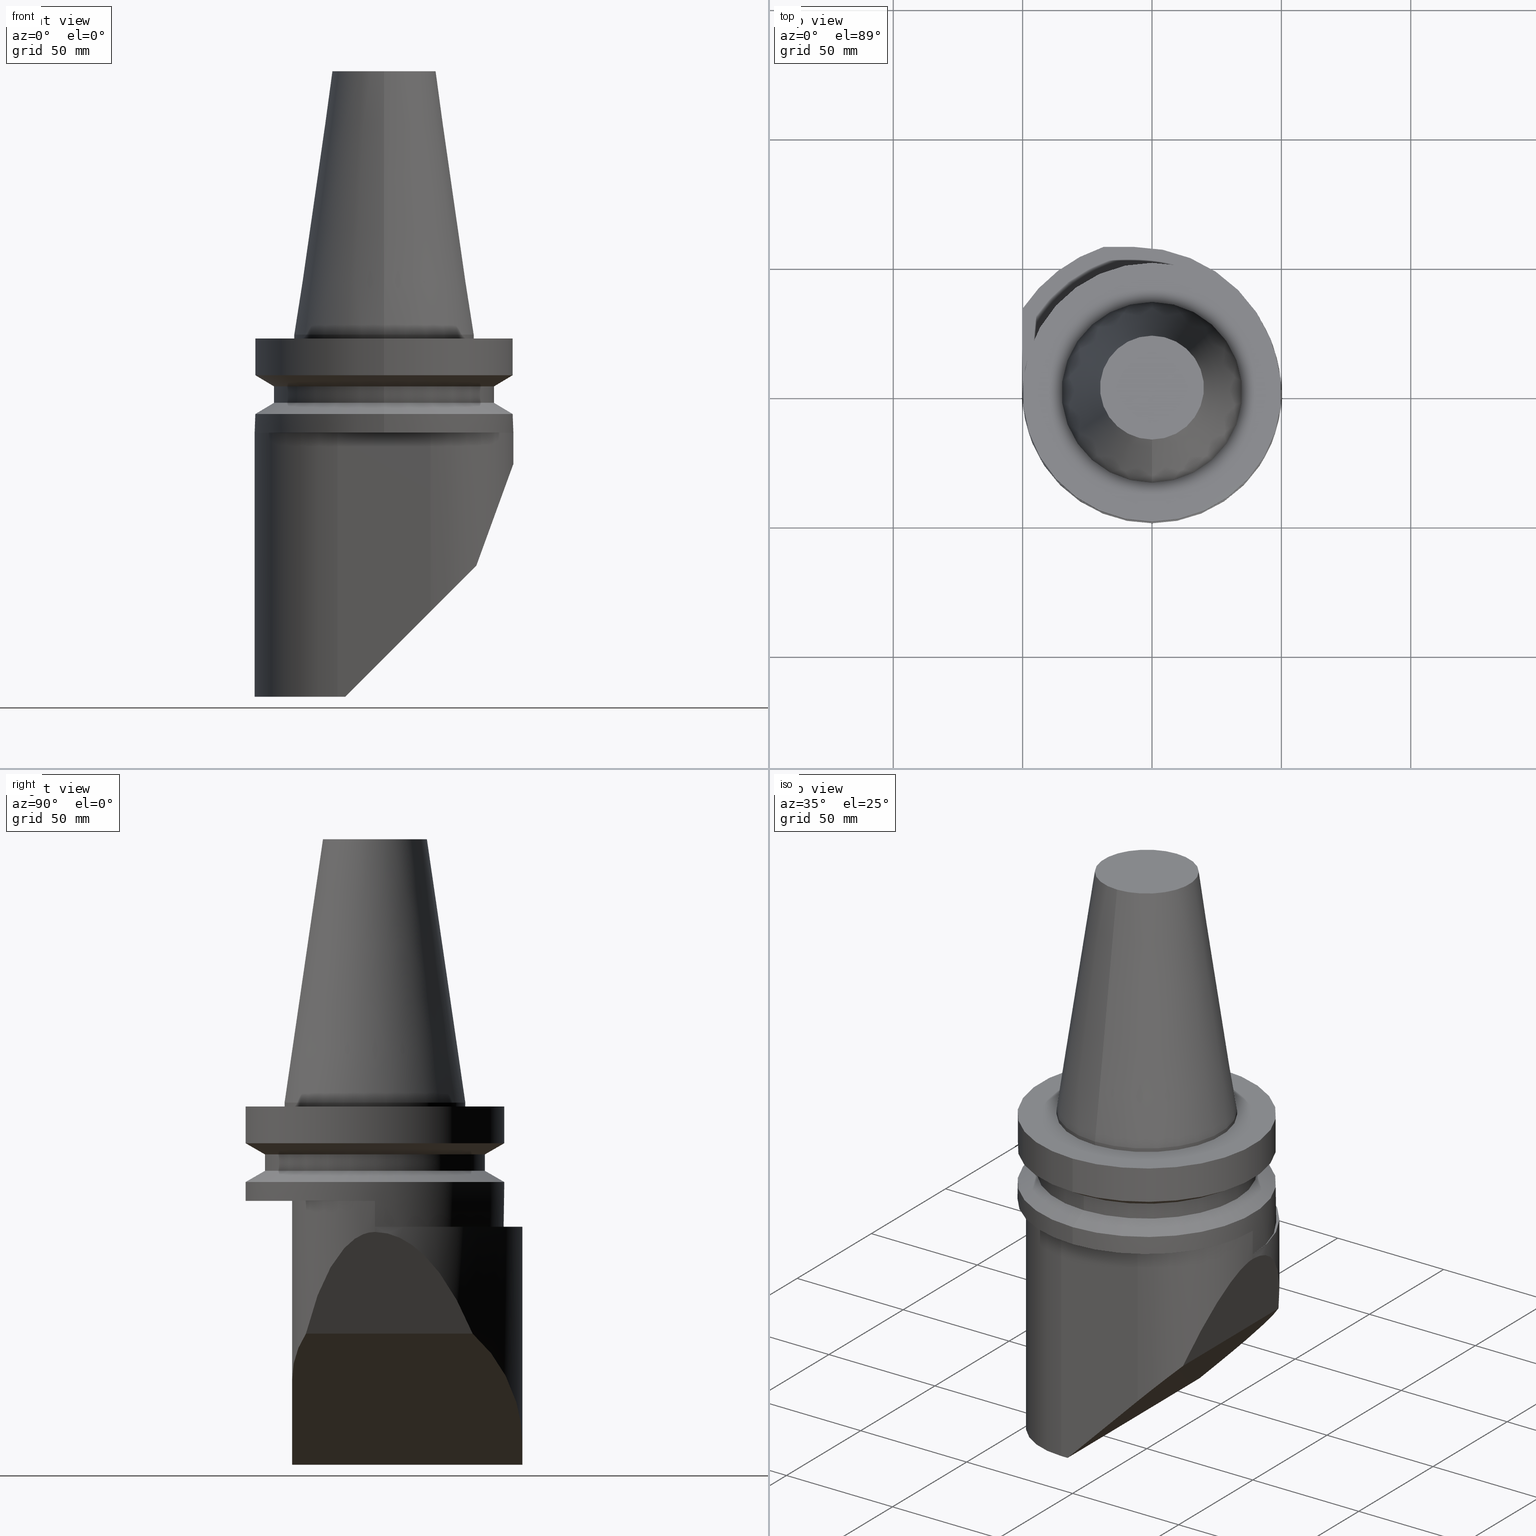
[diagram: canonical four-view strip — front | top / right | iso, engineering-drawing reading convention]
A machine part, canonical four-view strip (front | top / right | iso — engineering-drawing reading convention). The complete STEP part file that produces these views, byte-faithful:
ISO-10303-21;
HEADER;
FILE_DESCRIPTION((''),'1');
FILE_NAME('T:/21_DXF\X2\30C730FC30BF4F5C621057FA6E96\X0\/BBT50M-180-BH25L-140.stp','2017-05-02T05:32:19',(''),(''),'Spatial Interop R21 SP3','Kubotek KeyCreator 2011 V10.0.2 (22737)',' ');
FILE_SCHEMA(('automotive_design'));
ENDSEC;
DATA;
#1=MECHANICAL_DESIGN_GEOMETRIC_PRESENTATION_REPRESENTATION(' ',(#10,#11,#12,#13,#14,#15,#16,#17,#18,#19,#20,#21,#22,#23,#24,#25,#26,#27,#28,#29,#30,#31,#32,#33,#34,#35,#36,#37,#38,#39,#40,#41,#42,#43,#44,#45,#46,#47,#48,#49,#50,#51,#52,#53,#54,#55,#56,#57,#58,#59,#60,#61,#62,#63,#64,#65,#66,#67,#68,#69,#70,#71,#72,#73,#74,#75,#76,#77,#78,#79,#80,#81,#82,#83,#84,#85),#6);
#2=PRODUCT_DEFINITION_CONTEXT('',#86,'design');
#3=APPLICATION_PROTOCOL_DEFINITION('INTERNATIONAL STANDARD','automotive_design',1994,#86);
#4=PRODUCT_CATEGORY_RELATIONSHIP('NONE','NONE',#87,#88);
#5=SHAPE_DEFINITION_REPRESENTATION(#89,#90);
#6= (GEOMETRIC_REPRESENTATION_CONTEXT(3)GLOBAL_UNCERTAINTY_ASSIGNED_CONTEXT((#93))GLOBAL_UNIT_ASSIGNED_CONTEXT((#95,#96,#97))REPRESENTATION_CONTEXT('NONE','WORKSPACE'));
#10=STYLED_ITEM('',(#99,#100),#101);
#11=STYLED_ITEM('',(#102,#103),#104);
#12=STYLED_ITEM('',(#105,#106),#107);
#13=STYLED_ITEM('',(#108),#109);
#14=STYLED_ITEM('',(#110),#111);
#15=STYLED_ITEM('',(#112),#113);
#16=STYLED_ITEM('',(#114),#115);
#17=STYLED_ITEM('',(#116,#117),#118);
#18=STYLED_ITEM('',(#119,#120),#121);
#19=STYLED_ITEM('',(#122),#123);
#20=STYLED_ITEM('',(#124),#125);
#21=STYLED_ITEM('',(#126),#127);
#22=STYLED_ITEM('',(#128),#129);
#23=STYLED_ITEM('',(#130),#131);
#24=STYLED_ITEM('',(#132),#133);
#25=STYLED_ITEM('',(#134,#135),#136);
#26=STYLED_ITEM('',(#137),#138);
#27=STYLED_ITEM('',(#139),#140);
#28=STYLED_ITEM('',(#141,#142),#143);
#29=STYLED_ITEM('',(#144,#145),#146);
#30=STYLED_ITEM('',(#147),#148);
#31=STYLED_ITEM('',(#149),#150);
#32=STYLED_ITEM('',(#151),#152);
#33=STYLED_ITEM('',(#153),#154);
#34=STYLED_ITEM('',(#155),#156);
#35=STYLED_ITEM('',(#157),#158);
#36=STYLED_ITEM('',(#159),#160);
#37=STYLED_ITEM('',(#161),#162);
#38=STYLED_ITEM('',(#163,#164),#165);
#39=STYLED_ITEM('',(#166,#167),#168);
#40=STYLED_ITEM('',(#169),#170);
#41=STYLED_ITEM('',(#171),#172);
#42=STYLED_ITEM('',(#173,#174),#175);
#43=STYLED_ITEM('',(#176),#177);
#44=STYLED_ITEM('',(#178),#179);
#45=STYLED_ITEM('',(#180),#181);
#46=STYLED_ITEM('',(#182,#183),#184);
#47=STYLED_ITEM('',(#185),#186);
#48=STYLED_ITEM('',(#187),#188);
#49=STYLED_ITEM('',(#189),#190);
#50=STYLED_ITEM('',(#191,#192),#193);
#51=STYLED_ITEM('',(#194,#195),#196);
#52=STYLED_ITEM('',(#197,#198),#199);
#53=STYLED_ITEM('',(#200),#201);
#54=STYLED_ITEM('',(#202),#203);
#55=STYLED_ITEM('',(#204),#205);
#56=STYLED_ITEM('',(#206),#207);
#57=STYLED_ITEM('',(#208),#209);
#58=STYLED_ITEM('',(#210),#211);
#59=STYLED_ITEM('',(#212),#213);
#60=STYLED_ITEM('',(#214,#215),#216);
#61=STYLED_ITEM('',(#217),#218);
#62=STYLED_ITEM('',(#219),#220);
#63=STYLED_ITEM('',(#221),#222);
#64=STYLED_ITEM('',(#223,#224),#225);
#65=STYLED_ITEM('',(#226,#227),#228);
#66=STYLED_ITEM('',(#229),#230);
#67=STYLED_ITEM('',(#231),#232);
#68=STYLED_ITEM('',(#233),#234);
#69=STYLED_ITEM('',(#235),#236);
#70=STYLED_ITEM('',(#237,#238),#239);
#71=STYLED_ITEM('',(#240,#241),#242);
#72=STYLED_ITEM('',(#243,#244),#245);
#73=STYLED_ITEM('',(#246,#247),#248);
#74=STYLED_ITEM('',(#249),#250);
#75=STYLED_ITEM('',(#251,#252),#253);
#76=STYLED_ITEM('',(#254,#255),#256);
#77=STYLED_ITEM('',(#257),#258);
#78=STYLED_ITEM('',(#259),#260);
#79=STYLED_ITEM('',(#261),#262);
#80=STYLED_ITEM('',(#263),#264);
#81=STYLED_ITEM('',(#265,#266),#267);
#82=STYLED_ITEM('',(#268,#269),#270);
#83=STYLED_ITEM('',(#271),#272);
#84=STYLED_ITEM('',(#273),#274);
#85=STYLED_ITEM('',(#275),#276);
#86=APPLICATION_CONTEXT(' ');
#87=PRODUCT_CATEGORY('part','NONE');
#88=PRODUCT_RELATED_PRODUCT_CATEGORY('detail',' ',(#277));
#89=PRODUCT_DEFINITION_SHAPE('NONE','NONE',#278);
#90=ADVANCED_BREP_SHAPE_REPRESENTATION('Unnamed[1]',(#146,#279),#6);
#93=UNCERTAINTY_MEASURE_WITH_UNIT(LENGTH_MEASURE(1.0E-006),#95,'','');
#95= (CONVERSION_BASED_UNIT('MILLIMETRE',#282)LENGTH_UNIT()NAMED_UNIT(#285));
#96= (NAMED_UNIT(#287)PLANE_ANGLE_UNIT()SI_UNIT($,.RADIAN.));
#97= (NAMED_UNIT(#287)SOLID_ANGLE_UNIT()SI_UNIT($,.STERADIAN.));
#99=PRESENTATION_STYLE_ASSIGNMENT((#293));
#100=PRESENTATION_STYLE_ASSIGNMENT((#294));
#101=ADVANCED_FACE('Unnamed[1]',(#295,#296),#297,.T.);
#102=PRESENTATION_STYLE_ASSIGNMENT((#298));
#103=PRESENTATION_STYLE_ASSIGNMENT((#299));
#104=ADVANCED_FACE('Unnamed[1]',(#300,#301),#302,.T.);
#105=PRESENTATION_STYLE_ASSIGNMENT((#303));
#106=PRESENTATION_STYLE_ASSIGNMENT((#304));
#107=ADVANCED_FACE('Unnamed[1]',(#305),#306,.T.);
#108=PRESENTATION_STYLE_ASSIGNMENT((#307));
#109=EDGE_CURVE('Unnamed[1]',#308,#309,#310,.T.);
#110=PRESENTATION_STYLE_ASSIGNMENT((#311));
#111=EDGE_CURVE('Unnamed[1]',#312,#313,#314,.T.);
#112=PRESENTATION_STYLE_ASSIGNMENT((#315));
#113=EDGE_CURVE('Unnamed[1]',#316,#317,#318,.T.);
#114=PRESENTATION_STYLE_ASSIGNMENT((#319));
#115=EDGE_CURVE('Unnamed[1]',#320,#320,#321,.T.);
#116=PRESENTATION_STYLE_ASSIGNMENT((#322));
#117=PRESENTATION_STYLE_ASSIGNMENT((#323));
#118=ADVANCED_FACE('Unnamed[1]',(#324),#325,.F.);
#119=PRESENTATION_STYLE_ASSIGNMENT((#326));
#120=PRESENTATION_STYLE_ASSIGNMENT((#327));
#121=ADVANCED_FACE('Unnamed[1]',(#328,#329),#330,.T.);
#122=PRESENTATION_STYLE_ASSIGNMENT((#331));
#123=EDGE_CURVE('Unnamed[1]',#309,#317,#332,.T.);
#124=PRESENTATION_STYLE_ASSIGNMENT((#333));
#125=EDGE_CURVE('Unnamed[1]',#334,#334,#335,.T.);
#126=PRESENTATION_STYLE_ASSIGNMENT((#336));
#127=EDGE_CURVE('Unnamed[1]',#337,#338,#339,.T.);
#128=PRESENTATION_STYLE_ASSIGNMENT((#340));
#129=EDGE_CURVE('Unnamed[1]',#341,#342,#343,.T.);
#130=PRESENTATION_STYLE_ASSIGNMENT((#344));
#131=EDGE_CURVE('Unnamed[1]',#338,#345,#346,.T.);
#132=PRESENTATION_STYLE_ASSIGNMENT((#347));
#133=EDGE_CURVE('Unnamed[1]',#317,#348,#349,.T.);
#134=PRESENTATION_STYLE_ASSIGNMENT((#350));
#135=PRESENTATION_STYLE_ASSIGNMENT((#351));
#136=ADVANCED_FACE('Unnamed[1]',(#352),#353,.F.);
#137=PRESENTATION_STYLE_ASSIGNMENT((#354));
#138=EDGE_CURVE('Unnamed[1]',#355,#341,#356,.T.);
#139=PRESENTATION_STYLE_ASSIGNMENT((#357));
#140=EDGE_CURVE('Unnamed[1]',#358,#358,#359,.T.);
#141=PRESENTATION_STYLE_ASSIGNMENT((#360));
#142=PRESENTATION_STYLE_ASSIGNMENT((#361));
#143=ADVANCED_FACE('Unnamed[1]',(#362),#363,.F.);
#144=PRESENTATION_STYLE_ASSIGNMENT((#364));
#145=PRESENTATION_STYLE_ASSIGNMENT((#365));
#146=MANIFOLD_SOLID_BREP('Unnamed[1]',#366);
#147=PRESENTATION_STYLE_ASSIGNMENT((#367));
#148=EDGE_CURVE('Unnamed[1]',#368,#316,#369,.T.);
#149=PRESENTATION_STYLE_ASSIGNMENT((#370));
#150=EDGE_CURVE('Unnamed[1]',#371,#337,#372,.T.);
#151=PRESENTATION_STYLE_ASSIGNMENT((#373));
#152=EDGE_CURVE('Unnamed[1]',#374,#374,#375,.T.);
#153=PRESENTATION_STYLE_ASSIGNMENT((#376));
#154=EDGE_CURVE('Unnamed[1]',#377,#378,#379,.T.);
#155=PRESENTATION_STYLE_ASSIGNMENT((#380));
#156=EDGE_CURVE('Unnamed[1]',#378,#355,#381,.T.);
#157=PRESENTATION_STYLE_ASSIGNMENT((#382));
#158=EDGE_CURVE('Unnamed[1]',#383,#384,#385,.T.);
#159=PRESENTATION_STYLE_ASSIGNMENT((#386));
#160=EDGE_CURVE('Unnamed[1]',#348,#378,#387,.T.);
#161=PRESENTATION_STYLE_ASSIGNMENT((#388));
#162=EDGE_CURVE('Unnamed[1]',#389,#390,#391,.T.);
#163=PRESENTATION_STYLE_ASSIGNMENT((#392));
#164=PRESENTATION_STYLE_ASSIGNMENT((#393));
#165=ADVANCED_FACE('Unnamed[1]',(#394,#395),#396,.T.);
#166=PRESENTATION_STYLE_ASSIGNMENT((#397));
#167=PRESENTATION_STYLE_ASSIGNMENT((#398));
#168=ADVANCED_FACE('Unnamed[1]',(#399,#400),#401,.T.);
#169=PRESENTATION_STYLE_ASSIGNMENT((#402));
#170=EDGE_CURVE('Unnamed[1]',#403,#403,#404,.T.);
#171=PRESENTATION_STYLE_ASSIGNMENT((#405));
#172=EDGE_CURVE('Unnamed[1]',#406,#407,#408,.T.);
#173=PRESENTATION_STYLE_ASSIGNMENT((#409));
#174=PRESENTATION_STYLE_ASSIGNMENT((#410));
#175=ADVANCED_FACE('Unnamed[1]',(#411),#412,.T.);
#176=PRESENTATION_STYLE_ASSIGNMENT((#413));
#177=EDGE_CURVE('Unnamed[1]',#390,#377,#414,.T.);
#178=PRESENTATION_STYLE_ASSIGNMENT((#415));
#179=EDGE_CURVE('Unnamed[1]',#345,#416,#417,.T.);
#180=PRESENTATION_STYLE_ASSIGNMENT((#418));
#181=EDGE_CURVE('Unnamed[1]',#341,#406,#419,.T.);
#182=PRESENTATION_STYLE_ASSIGNMENT((#420));
#183=PRESENTATION_STYLE_ASSIGNMENT((#421));
#184=ADVANCED_FACE('Unnamed[1]',(#422),#423,.F.);
#185=PRESENTATION_STYLE_ASSIGNMENT((#424));
#186=EDGE_CURVE('Unnamed[1]',#309,#368,#425,.T.);
#187=PRESENTATION_STYLE_ASSIGNMENT((#426));
#188=EDGE_CURVE('Unnamed[1]',#427,#383,#428,.T.);
#189=PRESENTATION_STYLE_ASSIGNMENT((#429));
#190=EDGE_CURVE('Unnamed[1]',#430,#389,#431,.T.);
#191=PRESENTATION_STYLE_ASSIGNMENT((#432));
#192=PRESENTATION_STYLE_ASSIGNMENT((#433));
#193=ADVANCED_FACE('Unnamed[1]',(#434),#435,.F.);
#194=PRESENTATION_STYLE_ASSIGNMENT((#436));
#195=PRESENTATION_STYLE_ASSIGNMENT((#437));
#196=ADVANCED_FACE('Unnamed[1]',(#438),#439,.T.);
#197=PRESENTATION_STYLE_ASSIGNMENT((#440));
#198=PRESENTATION_STYLE_ASSIGNMENT((#441));
#199=ADVANCED_FACE('Unnamed[1]',(#442,#443),#444,.T.);
#200=PRESENTATION_STYLE_ASSIGNMENT((#445));
#201=EDGE_CURVE('Unnamed[1]',#313,#430,#446,.T.);
#202=PRESENTATION_STYLE_ASSIGNMENT((#447));
#203=EDGE_CURVE('Unnamed[1]',#389,#371,#448,.T.);
#204=PRESENTATION_STYLE_ASSIGNMENT((#449));
#205=EDGE_CURVE('Unnamed[1]',#338,#312,#450,.T.);
#206=PRESENTATION_STYLE_ASSIGNMENT((#451));
#207=EDGE_CURVE('Unnamed[1]',#313,#416,#452,.T.);
#208=PRESENTATION_STYLE_ASSIGNMENT((#453));
#209=EDGE_CURVE('Unnamed[1]',#377,#308,#454,.T.);
#210=PRESENTATION_STYLE_ASSIGNMENT((#455));
#211=EDGE_CURVE('Unnamed[1]',#368,#383,#456,.T.);
#212=PRESENTATION_STYLE_ASSIGNMENT((#457));
#213=EDGE_CURVE('Unnamed[1]',#316,#378,#458,.T.);
#214=PRESENTATION_STYLE_ASSIGNMENT((#459));
#215=PRESENTATION_STYLE_ASSIGNMENT((#460));
#216=ADVANCED_FACE('Unnamed[1]',(#461),#462,.T.);
#217=PRESENTATION_STYLE_ASSIGNMENT((#463));
#218=EDGE_CURVE('Unnamed[1]',#384,#355,#464,.T.);
#219=PRESENTATION_STYLE_ASSIGNMENT((#465));
#220=EDGE_CURVE('Unnamed[1]',#390,#406,#466,.T.);
#221=PRESENTATION_STYLE_ASSIGNMENT((#467));
#222=EDGE_CURVE('Unnamed[1]',#371,#407,#468,.T.);
#223=PRESENTATION_STYLE_ASSIGNMENT((#469));
#224=PRESENTATION_STYLE_ASSIGNMENT((#470));
#225=ADVANCED_FACE('Unnamed[1]',(#471,#472),#473,.T.);
#226=PRESENTATION_STYLE_ASSIGNMENT((#474));
#227=PRESENTATION_STYLE_ASSIGNMENT((#475));
#228=ADVANCED_FACE('Unnamed[1]',(#476,#477),#478,.T.);
#229=PRESENTATION_STYLE_ASSIGNMENT((#479));
#230=EDGE_CURVE('Unnamed[1]',#480,#480,#481,.T.);
#231=PRESENTATION_STYLE_ASSIGNMENT((#482));
#232=EDGE_CURVE('Unnamed[1]',#483,#384,#484,.T.);
#233=PRESENTATION_STYLE_ASSIGNMENT((#485));
#234=EDGE_CURVE('Unnamed[1]',#407,#342,#486,.T.);
#235=PRESENTATION_STYLE_ASSIGNMENT((#487));
#236=EDGE_CURVE('Unnamed[1]',#337,#312,#488,.T.);
#237=PRESENTATION_STYLE_ASSIGNMENT((#489));
#238=PRESENTATION_STYLE_ASSIGNMENT((#490));
#239=ADVANCED_FACE('Unnamed[1]',(#491),#492,.F.);
#240=PRESENTATION_STYLE_ASSIGNMENT((#493));
#241=PRESENTATION_STYLE_ASSIGNMENT((#494));
#242=ADVANCED_FACE('Unnamed[1]',(#495),#496,.T.);
#243=PRESENTATION_STYLE_ASSIGNMENT((#497));
#244=PRESENTATION_STYLE_ASSIGNMENT((#498));
#245=ADVANCED_FACE('Unnamed[1]',(#499),#500,.T.);
#246=PRESENTATION_STYLE_ASSIGNMENT((#501));
#247=PRESENTATION_STYLE_ASSIGNMENT((#502));
#248=ADVANCED_FACE('Unnamed[1]',(#503),#504,.F.);
#249=PRESENTATION_STYLE_ASSIGNMENT((#505));
#250=EDGE_CURVE('Unnamed[1]',#430,#427,#506,.T.);
#251=PRESENTATION_STYLE_ASSIGNMENT((#507));
#252=PRESENTATION_STYLE_ASSIGNMENT((#508));
#253=ADVANCED_FACE('Unnamed[1]',(#509),#510,.F.);
#254=PRESENTATION_STYLE_ASSIGNMENT((#511));
#255=PRESENTATION_STYLE_ASSIGNMENT((#512));
#256=ADVANCED_FACE('Unnamed[1]',(#513),#514,.T.);
#257=PRESENTATION_STYLE_ASSIGNMENT((#515));
#258=EDGE_CURVE('Unnamed[1]',#483,#427,#516,.F.);
#259=PRESENTATION_STYLE_ASSIGNMENT((#517));
#260=EDGE_CURVE('Unnamed[1]',#345,#342,#518,.T.);
#261=PRESENTATION_STYLE_ASSIGNMENT((#519));
#262=EDGE_CURVE('Unnamed[1]',#520,#520,#521,.T.);
#263=PRESENTATION_STYLE_ASSIGNMENT((#522));
#264=EDGE_CURVE('Unnamed[1]',#416,#483,#523,.T.);
#265=PRESENTATION_STYLE_ASSIGNMENT((#524));
#266=PRESENTATION_STYLE_ASSIGNMENT((#525));
#267=ADVANCED_FACE('Unnamed[1]',(#526),#527,.F.);
#268=PRESENTATION_STYLE_ASSIGNMENT((#528));
#269=PRESENTATION_STYLE_ASSIGNMENT((#529));
#270=ADVANCED_FACE('Unnamed[1]',(#530),#531,.T.);
#271=PRESENTATION_STYLE_ASSIGNMENT((#532));
#272=EDGE_CURVE('Unnamed[1]',#308,#348,#533,.T.);
#273=PRESENTATION_STYLE_ASSIGNMENT((#534));
#274=EDGE_CURVE('Unnamed[1]',#535,#535,#536,.T.);
#275=PRESENTATION_STYLE_ASSIGNMENT((#537));
#276=EDGE_CURVE('Unnamed[1]',#345,#355,#538,.T.);
#277=PRODUCT('Unnamed[1]','Unnamed[1]','PART-Unnamed[1]-DESC',(#539));
#278=PRODUCT_DEFINITION('NONE','NONE',#540,#2);
#279=AXIS2_PLACEMENT_3D('',#541,#542,#543);
#282=LENGTH_MEASURE_WITH_UNIT(LENGTH_MEASURE(1.0),#544);
#285=DIMENSIONAL_EXPONENTS(1.0,0.0,0.0,0.0,0.0,0.0,0.0);
#287=DIMENSIONAL_EXPONENTS(0.0,0.0,0.0,0.0,0.0,0.0,0.0);
#293=SURFACE_STYLE_USAGE(.BOTH.,#545);
#294=CURVE_STYLE('',#546,POSITIVE_LENGTH_MEASURE(1000.0),#547);
#295=FACE_BOUND('',#548,.T.);
#296=FACE_BOUND('',#549,.T.);
#297=CYLINDRICAL_SURFACE('',#550,42.5000000000007);
#298=SURFACE_STYLE_USAGE(.BOTH.,#551);
#299=CURVE_STYLE('',#552,POSITIVE_LENGTH_MEASURE(1000.0),#553);
#300=FACE_OUTER_BOUND('',#554,.T.);
#301=FACE_BOUND('',#555,.T.);
#302=PLANE('',#556);
#303=SURFACE_STYLE_USAGE(.BOTH.,#557);
#304=CURVE_STYLE('',#558,POSITIVE_LENGTH_MEASURE(1000.0),#559);
#305=FACE_OUTER_BOUND('',#560,.T.);
#306=PLANE('',#561);
#307=CURVE_STYLE('',#562,POSITIVE_LENGTH_MEASURE(1000.0),#563);
#308=VERTEX_POINT('',#564);
#309=VERTEX_POINT('',#565);
#310=LINE('',#566,#567);
#311=CURVE_STYLE('',#568,POSITIVE_LENGTH_MEASURE(1000.0),#569);
#312=VERTEX_POINT('',#570);
#313=VERTEX_POINT('',#571);
#314=ELLIPSE('',#572,80.6101730552664,57.0);
#315=CURVE_STYLE('',#573,POSITIVE_LENGTH_MEASURE(1000.0),#574);
#316=VERTEX_POINT('',#575);
#317=VERTEX_POINT('',#576);
#318=LINE('',#577,#578);
#319=CURVE_STYLE('',#579,POSITIVE_LENGTH_MEASURE(1000.0),#580);
#320=VERTEX_POINT('',#581);
#321=CIRCLE('',#582,50.0000000000022);
#322=SURFACE_STYLE_USAGE(.BOTH.,#583);
#323=CURVE_STYLE('',#584,POSITIVE_LENGTH_MEASURE(1000.0),#585);
#324=FACE_OUTER_BOUND('',#586,.T.);
#325=PLANE('',#587);
#326=SURFACE_STYLE_USAGE(.BOTH.,#588);
#327=CURVE_STYLE('',#589,POSITIVE_LENGTH_MEASURE(1000.0),#590);
#328=FACE_BOUND('',#591,.T.);
#329=FACE_BOUND('',#592,.T.);
#330=CONICAL_SURFACE('',#593,27.5020833333347,0.144812498238939);
#331=CURVE_STYLE('',#594,POSITIVE_LENGTH_MEASURE(1000.0),#595);
#332=LINE('',#596,#597);
#333=CURVE_STYLE('',#598,POSITIVE_LENGTH_MEASURE(1000.0),#599);
#334=VERTEX_POINT('',#600);
#335=CIRCLE('',#601,34.9250000000018);
#336=CURVE_STYLE('',#602,POSITIVE_LENGTH_MEASURE(1000.0),#603);
#337=VERTEX_POINT('',#604);
#338=VERTEX_POINT('',#605);
#339=ELLIPSE('',#606,93.5617408052189,32.0);
#340=CURVE_STYLE('',#607,POSITIVE_LENGTH_MEASURE(1000.0),#608);
#341=VERTEX_POINT('',#609);
#342=VERTEX_POINT('',#610);
#343=CIRCLE('',#611,49.9999999999992);
#344=CURVE_STYLE('',#612,POSITIVE_LENGTH_MEASURE(1000.0),#613);
#345=VERTEX_POINT('',#614);
#346=LINE('',#615,#616);
#347=CURVE_STYLE('',#617,POSITIVE_LENGTH_MEASURE(1000.0),#618);
#348=VERTEX_POINT('',#619);
#349=LINE('',#620,#621);
#350=SURFACE_STYLE_USAGE(.BOTH.,#622);
#351=CURVE_STYLE('',#623,POSITIVE_LENGTH_MEASURE(1000.0),#624);
#352=FACE_OUTER_BOUND('',#625,.T.);
#353=PLANE('',#626);
#354=CURVE_STYLE('',#627,POSITIVE_LENGTH_MEASURE(1000.0),#628);
#355=VERTEX_POINT('',#629);
#356=LINE('',#630,#631);
#357=CURVE_STYLE('',#632,POSITIVE_LENGTH_MEASURE(1000.0),#633);
#358=VERTEX_POINT('',#634);
#359=CIRCLE('',#635,20.0791666666676);
#360=SURFACE_STYLE_USAGE(.BOTH.,#636);
#361=CURVE_STYLE('',#637,POSITIVE_LENGTH_MEASURE(1000.0),#638);
#362=FACE_OUTER_BOUND('',#639,.T.);
#363=PLANE('',#640);
#364=SURFACE_STYLE_USAGE(.BOTH.,#641);
#365=CURVE_STYLE('',#642,POSITIVE_LENGTH_MEASURE(1000.0),#643);
#366=CLOSED_SHELL('',(#267,#136,#184,#242,#193,#270,#253,#143,#248,#118,#175,#239,#245,#256,#216,#196,#228,#199,#101,#225,#165,#104,#168,#121,#107));
#367=CURVE_STYLE('',#644,POSITIVE_LENGTH_MEASURE(1000.0),#645);
#368=VERTEX_POINT('',#646);
#369=LINE('',#647,#648);
#370=CURVE_STYLE('',#649,POSITIVE_LENGTH_MEASURE(1000.0),#650);
#371=VERTEX_POINT('',#651);
#372=ELLIPSE('',#652,45.254833995939,32.0);
#373=CURVE_STYLE('',#653,POSITIVE_LENGTH_MEASURE(1000.0),#654);
#374=VERTEX_POINT('',#655);
#375=CIRCLE('',#656,42.5000000000006);
#376=CURVE_STYLE('',#657,POSITIVE_LENGTH_MEASURE(1000.0),#658);
#377=VERTEX_POINT('',#659);
#378=VERTEX_POINT('',#660);
#379=LINE('',#661,#662);
#380=CURVE_STYLE('',#663,POSITIVE_LENGTH_MEASURE(1000.0),#664);
#381=LINE('',#665,#666);
#382=CURVE_STYLE('',#667,POSITIVE_LENGTH_MEASURE(1000.0),#668);
#383=VERTEX_POINT('',#669);
#384=VERTEX_POINT('',#670);
#385=LINE('',#671,#672);
#386=CURVE_STYLE('',#673,POSITIVE_LENGTH_MEASURE(1000.0),#674);
#387=LINE('',#675,#676);
#388=CURVE_STYLE('',#677,POSITIVE_LENGTH_MEASURE(1000.0),#678);
#389=VERTEX_POINT('',#679);
#390=VERTEX_POINT('',#680);
#391=LINE('',#681,#682);
#392=SURFACE_STYLE_USAGE(.BOTH.,#683);
#393=CURVE_STYLE('',#684,POSITIVE_LENGTH_MEASURE(1000.0),#685);
#394=FACE_BOUND('',#686,.T.);
#395=FACE_BOUND('',#687,.T.);
#396=CYLINDRICAL_SURFACE('',#688,50.0000000000019);
#397=SURFACE_STYLE_USAGE(.BOTH.,#689);
#398=CURVE_STYLE('',#690,POSITIVE_LENGTH_MEASURE(1000.0),#691);
#399=FACE_BOUND('',#692,.T.);
#400=FACE_BOUND('',#693,.T.);
#401=CYLINDRICAL_SURFACE('',#694,34.9250000000018);
#402=CURVE_STYLE('',#695,POSITIVE_LENGTH_MEASURE(1000.0),#696);
#403=VERTEX_POINT('',#697);
#404=CIRCLE('',#698,50.0000000000003);
#405=CURVE_STYLE('',#699,POSITIVE_LENGTH_MEASURE(1000.0),#700);
#406=VERTEX_POINT('',#701);
#407=VERTEX_POINT('',#702);
#408=LINE('',#703,#704);
#409=SURFACE_STYLE_USAGE(.BOTH.,#705);
#410=CURVE_STYLE('',#706,POSITIVE_LENGTH_MEASURE(1000.0),#707);
#411=FACE_OUTER_BOUND('',#708,.T.);
#412=CYLINDRICAL_SURFACE('',#709,32.0);
#413=CURVE_STYLE('',#710,POSITIVE_LENGTH_MEASURE(1000.0),#711);
#414=CIRCLE('',#712,32.0);
#415=CURVE_STYLE('',#713,POSITIVE_LENGTH_MEASURE(1000.0),#714);
#416=VERTEX_POINT('',#715);
#417=CIRCLE('',#716,57.0);
#418=CURVE_STYLE('',#717,POSITIVE_LENGTH_MEASURE(1000.0),#718);
#419=CIRCLE('',#719,32.0);
#420=SURFACE_STYLE_USAGE(.BOTH.,#720);
#421=CURVE_STYLE('',#721,POSITIVE_LENGTH_MEASURE(1000.0),#722);
#422=FACE_OUTER_BOUND('',#723,.T.);
#423=PLANE('',#724);
#424=CURVE_STYLE('',#725,POSITIVE_LENGTH_MEASURE(1000.0),#726);
#425=LINE('',#727,#728);
#426=CURVE_STYLE('',#729,POSITIVE_LENGTH_MEASURE(1000.0),#730);
#427=VERTEX_POINT('',#731);
#428=CIRCLE('',#732,60.0);
#429=CURVE_STYLE('',#733,POSITIVE_LENGTH_MEASURE(1000.0),#734);
#430=VERTEX_POINT('',#735);
#431=LINE('',#736,#737);
#432=SURFACE_STYLE_USAGE(.BOTH.,#738);
#433=CURVE_STYLE('',#739,POSITIVE_LENGTH_MEASURE(1000.0),#740);
#434=FACE_OUTER_BOUND('',#741,.T.);
#435=PLANE('',#742);
#436=SURFACE_STYLE_USAGE(.BOTH.,#743);
#437=CURVE_STYLE('',#744,POSITIVE_LENGTH_MEASURE(1000.0),#745);
#438=FACE_OUTER_BOUND('',#746,.T.);
#439=CYLINDRICAL_SURFACE('',#747,60.0);
#440=SURFACE_STYLE_USAGE(.BOTH.,#748);
#441=CURVE_STYLE('',#749,POSITIVE_LENGTH_MEASURE(1000.0),#750);
#442=FACE_BOUND('',#751,.T.);
#443=FACE_BOUND('',#752,.T.);
#444=CONICAL_SURFACE('',#753,46.2500000000004,1.04719755119655);
#445=CURVE_STYLE('',#754,POSITIVE_LENGTH_MEASURE(1000.0),#755);
#446=LINE('',#756,#757);
#447=CURVE_STYLE('',#758,POSITIVE_LENGTH_MEASURE(1000.0),#759);
#448=LINE('',#760,#761);
#449=CURVE_STYLE('',#762,POSITIVE_LENGTH_MEASURE(1000.0),#763);
#450=ELLIPSE('',#764,166.656850809296,57.0);
#451=CURVE_STYLE('',#765,POSITIVE_LENGTH_MEASURE(1000.0),#766);
#452=LINE('',#767,#768);
#453=CURVE_STYLE('',#769,POSITIVE_LENGTH_MEASURE(1000.0),#770);
#454=LINE('',#771,#772);
#455=CURVE_STYLE('',#773,POSITIVE_LENGTH_MEASURE(1000.0),#774);
#456=LINE('',#775,#776);
#457=CURVE_STYLE('',#777,POSITIVE_LENGTH_MEASURE(1000.0),#778);
#458=LINE('',#779,#780);
#459=SURFACE_STYLE_USAGE(.BOTH.,#781);
#460=CURVE_STYLE('',#782,POSITIVE_LENGTH_MEASURE(1000.0),#783);
#461=FACE_OUTER_BOUND('',#784,.T.);
#462=PLANE('',#785);
#463=CURVE_STYLE('',#786,POSITIVE_LENGTH_MEASURE(1000.0),#787);
#464=LINE('',#788,#789);
#465=CURVE_STYLE('',#790,POSITIVE_LENGTH_MEASURE(1000.0),#791);
#466=LINE('',#792,#793);
#467=CURVE_STYLE('',#794,POSITIVE_LENGTH_MEASURE(1000.0),#795);
#468=LINE('',#796,#797);
#469=SURFACE_STYLE_USAGE(.BOTH.,#798);
#470=CURVE_STYLE('',#799,POSITIVE_LENGTH_MEASURE(1000.0),#800);
#471=FACE_BOUND('',#801,.T.);
#472=FACE_BOUND('',#802,.T.);
#473=CONICAL_SURFACE('',#803,46.2500000000011,1.04719755119665);
#474=SURFACE_STYLE_USAGE(.BOTH.,#804);
#475=CURVE_STYLE('',#805,POSITIVE_LENGTH_MEASURE(1000.0),#806);
#476=FACE_BOUND('',#807,.T.);
#477=FACE_BOUND('',#808,.T.);
#478=CYLINDRICAL_SURFACE('',#809,49.9999999999992);
#479=CURVE_STYLE('',#810,POSITIVE_LENGTH_MEASURE(1000.0),#811);
#480=VERTEX_POINT('',#812);
#481=CIRCLE('',#813,42.5000000000008);
#482=CURVE_STYLE('',#814,POSITIVE_LENGTH_MEASURE(1000.0),#815);
#483=VERTEX_POINT('',#816);
#484=CIRCLE('',#817,60.0000000000001);
#485=CURVE_STYLE('',#818,POSITIVE_LENGTH_MEASURE(1000.0),#819);
#486=CIRCLE('',#820,32.0);
#487=CURVE_STYLE('',#821,POSITIVE_LENGTH_MEASURE(1000.0),#822);
#488=LINE('',#823,#824);
#489=SURFACE_STYLE_USAGE(.BOTH.,#825);
#490=CURVE_STYLE('',#826,POSITIVE_LENGTH_MEASURE(1000.0),#827);
#491=FACE_OUTER_BOUND('',#828,.T.);
#492=PLANE('',#829);
#493=SURFACE_STYLE_USAGE(.BOTH.,#830);
#494=CURVE_STYLE('',#831,POSITIVE_LENGTH_MEASURE(1000.0),#832);
#495=FACE_OUTER_BOUND('',#833,.T.);
#496=PLANE('',#834);
#497=SURFACE_STYLE_USAGE(.BOTH.,#835);
#498=CURVE_STYLE('',#836,POSITIVE_LENGTH_MEASURE(1000.0),#837);
#499=FACE_OUTER_BOUND('',#838,.T.);
#500=CYLINDRICAL_SURFACE('',#839,32.0);
#501=SURFACE_STYLE_USAGE(.BOTH.,#840);
#502=CURVE_STYLE('',#841,POSITIVE_LENGTH_MEASURE(1000.0),#842);
#503=FACE_OUTER_BOUND('',#843,.T.);
#504=PLANE('',#844);
#505=CURVE_STYLE('',#845,POSITIVE_LENGTH_MEASURE(1000.0),#846);
#506=LINE('',#847,#848);
#507=SURFACE_STYLE_USAGE(.BOTH.,#849);
#508=CURVE_STYLE('',#850,POSITIVE_LENGTH_MEASURE(1000.0),#851);
#509=FACE_OUTER_BOUND('',#852,.T.);
#510=PLANE('',#853);
#511=SURFACE_STYLE_USAGE(.BOTH.,#854);
#512=CURVE_STYLE('',#855,POSITIVE_LENGTH_MEASURE(1000.0),#856);
#513=FACE_OUTER_BOUND('',#857,.T.);
#514=CYLINDRICAL_SURFACE('',#858,57.0);
#515=CURVE_STYLE('',#859,POSITIVE_LENGTH_MEASURE(1000.0),#860);
#516=LINE('',#861,#862);
#517=CURVE_STYLE('',#863,POSITIVE_LENGTH_MEASURE(1000.0),#864);
#518=LINE('',#865,#866);
#519=CURVE_STYLE('',#867,POSITIVE_LENGTH_MEASURE(1000.0),#868);
#520=VERTEX_POINT('',#869);
#521=CIRCLE('',#870,50.0000000000015);
#522=CURVE_STYLE('',#871,POSITIVE_LENGTH_MEASURE(1000.0),#872);
#523=LINE('',#873,#874);
#524=SURFACE_STYLE_USAGE(.BOTH.,#875);
#525=CURVE_STYLE('',#876,POSITIVE_LENGTH_MEASURE(1000.0),#877);
#526=FACE_OUTER_BOUND('',#878,.T.);
#527=PLANE('',#879);
#528=SURFACE_STYLE_USAGE(.BOTH.,#880);
#529=CURVE_STYLE('',#881,POSITIVE_LENGTH_MEASURE(1000.0),#882);
#530=FACE_OUTER_BOUND('',#883,.T.);
#531=PLANE('',#884);
#532=CURVE_STYLE('',#885,POSITIVE_LENGTH_MEASURE(1000.0),#886);
#533=LINE('',#887,#888);
#534=CURVE_STYLE('',#889,POSITIVE_LENGTH_MEASURE(1000.0),#890);
#535=VERTEX_POINT('',#891);
#536=CIRCLE('',#892,34.9250000000018);
#537=CURVE_STYLE('',#893,POSITIVE_LENGTH_MEASURE(1000.0),#894);
#538=CIRCLE('',#895,49.9999999999981);
#539=PRODUCT_CONTEXT('',#86,'mechanical');
#540=PRODUCT_DEFINITION_FORMATION_WITH_SPECIFIED_SOURCE(' ','NONE',#277,.NOT_KNOWN.);
#541=CARTESIAN_POINT('',(0.0,0.0,0.0));
#542=DIRECTION('',(0.0,0.0,1.0));
#543=DIRECTION('',(1.0,0.0,0.0));
#544= (NAMED_UNIT(#285)LENGTH_UNIT()SI_UNIT(.MILLI.,.METRE.));
#545=SURFACE_SIDE_STYLE('',(#897));
#546=DRAUGHTING_PRE_DEFINED_CURVE_FONT('continuous');
#547=COLOUR_RGB('',0.0,1.0,0.0);
#548=EDGE_LOOP('',(#898));
#549=EDGE_LOOP('',(#899));
#550=AXIS2_PLACEMENT_3D('',#900,#901,#902);
#551=SURFACE_SIDE_STYLE('',(#903));
#552=DRAUGHTING_PRE_DEFINED_CURVE_FONT('continuous');
#553=COLOUR_RGB('',0.0,1.0,0.0);
#554=EDGE_LOOP('',(#904));
#555=EDGE_LOOP('',(#905));
#556=AXIS2_PLACEMENT_3D('',#906,#907,#908);
#557=SURFACE_SIDE_STYLE('',(#909));
#558=DRAUGHTING_PRE_DEFINED_CURVE_FONT('continuous');
#559=COLOUR_RGB('',0.0,1.0,0.0);
#560=EDGE_LOOP('',(#910));
#561=AXIS2_PLACEMENT_3D('',#911,#912,#913);
#562=DRAUGHTING_PRE_DEFINED_CURVE_FONT('continuous');
#563=COLOUR_RGB('',0.0,1.0,0.0);
#564=CARTESIAN_POINT('',(-24.9999999999996,-4.05761707815599E-012,-140.000000000001));
#565=CARTESIAN_POINT('',(-25.0000000000001,24.9999999999969,-140.000000000001));
#566=CARTESIAN_POINT('',(-24.9999999999994,-8.75000000000212,-140.000000000001));
#567=VECTOR('',#914,1.0);
#568=DRAUGHTING_PRE_DEFINED_CURVE_FONT('continuous');
#569=COLOUR_RGB('',0.0,1.0,0.0);
#570=CARTESIAN_POINT('',(35.6936634936258,37.7657397318381,-89.3063365063733));
#571=CARTESIAN_POINT('',(-6.99998249077038,56.9999999999947,-131.99998249077));
#572=AXIS2_PLACEMENT_3D('',#915,#916,#917);
#573=DRAUGHTING_PRE_DEFINED_CURVE_FONT('continuous');
#574=COLOUR_RGB('',0.0,1.0,0.0);
#575=CARTESIAN_POINT('',(-49.9999999275505,24.9999999999972,-49.9999999999986));
#576=CARTESIAN_POINT('',(-25.0000000000001,24.9999999999969,-49.9999999999986));
#577=CARTESIAN_POINT('',(-25.0000000000001,24.9999999999969,-49.9999999999986));
#578=VECTOR('',#918,1.0);
#579=DRAUGHTING_PRE_DEFINED_CURVE_FONT('continuous');
#580=COLOUR_RGB('',0.0,1.0,0.0);
#581=CARTESIAN_POINT('',(-6.21508250567317E-015,-50.0000000000022,-1.50000000000137));
#582=AXIS2_PLACEMENT_3D('',#919,#920,#921);
#583=SURFACE_SIDE_STYLE('',(#922));
#584=DRAUGHTING_PRE_DEFINED_CURVE_FONT('continuous');
#585=COLOUR_RGB('',0.0,1.0,0.0);
#586=EDGE_LOOP('',(#923,#924,#925,#926,#927));
#587=AXIS2_PLACEMENT_3D('',#928,#929,#930);
#588=SURFACE_SIDE_STYLE('',(#931));
#589=DRAUGHTING_PRE_DEFINED_CURVE_FONT('continuous');
#590=COLOUR_RGB('',0.0,1.0,0.0);
#591=EDGE_LOOP('',(#932));
#592=EDGE_LOOP('',(#933));
#593=AXIS2_PLACEMENT_3D('',#934,#935,#936);
#594=DRAUGHTING_PRE_DEFINED_CURVE_FONT('continuous');
#595=COLOUR_RGB('',0.0,1.0,0.0);
#596=CARTESIAN_POINT('',(-25.0000000000001,24.9999999999969,-265.999999999997));
#597=VECTOR('',#937,1.0);
#598=DRAUGHTING_PRE_DEFINED_CURVE_FONT('continuous');
#599=COLOUR_RGB('',0.0,1.0,0.0);
#600=CARTESIAN_POINT('',(-4.27707894602273E-015,-34.9250000000018,-6.23225801892545E-012));
#601=AXIS2_PLACEMENT_3D('',#938,#939,#940);
#602=DRAUGHTING_PRE_DEFINED_CURVE_FONT('continuous');
#603=COLOUR_RGB('',0.0,1.0,0.0);
#604=CARTESIAN_POINT('',(35.6936634936258,-26.6633507304409,-89.3063365063733));
#605=CARTESIAN_POINT('',(49.9999999999964,-2.98102113083824E-012,-50.0000000000009));
#606=AXIS2_PLACEMENT_3D('',#941,#942,#943);
#607=DRAUGHTING_PRE_DEFINED_CURVE_FONT('continuous');
#608=COLOUR_RGB('',0.0,1.0,0.0);
#609=CARTESIAN_POINT('',(-50.0000000000001,-2.96289635821086E-012,-38.0000000000027));
#610=CARTESIAN_POINT('',(50.0000000000011,-2.62844893776141E-012,-38.0000000000027));
#611=AXIS2_PLACEMENT_3D('',#944,#945,#946);
#612=DRAUGHTING_PRE_DEFINED_CURVE_FONT('continuous');
#613=COLOUR_RGB('',0.0,1.0,0.0);
#614=CARTESIAN_POINT('',(50.0000000000011,-2.62967358456056E-012,-48.0000000000074));
#615=CARTESIAN_POINT('',(50.0000000000011,-2.65637088478197E-012,-265.999999999997));
#616=VECTOR('',#947,1.0);
#617=DRAUGHTING_PRE_DEFINED_CURVE_FONT('continuous');
#618=COLOUR_RGB('',0.0,1.0,0.0);
#619=CARTESIAN_POINT('',(-24.9999999999996,-4.04659525696366E-012,-49.9999999999986));
#620=CARTESIAN_POINT('',(-25.0000000000001,24.9999999999969,-49.9999999999986));
#621=VECTOR('',#948,1.0);
#622=SURFACE_SIDE_STYLE('',(#949));
#623=DRAUGHTING_PRE_DEFINED_CURVE_FONT('continuous');
#624=COLOUR_RGB('',0.0,1.0,0.0);
#625=EDGE_LOOP('',(#950,#951,#952));
#626=AXIS2_PLACEMENT_3D('',#953,#954,#955);
#627=DRAUGHTING_PRE_DEFINED_CURVE_FONT('continuous');
#628=COLOUR_RGB('',0.0,1.0,0.0);
#629=CARTESIAN_POINT('',(-50.0000000000001,-2.96412100501001E-012,-48.0000000000074));
#630=CARTESIAN_POINT('',(-49.9999999999993,1.44897615947831E-007,-43.0000000000018));
#631=VECTOR('',#956,1.0);
#632=DRAUGHTING_PRE_DEFINED_CURVE_FONT('continuous');
#633=COLOUR_RGB('',0.0,1.0,0.0);
#634=CARTESIAN_POINT('',(3.77446348887197E-015,-20.0791666666675,101.8));
#635=AXIS2_PLACEMENT_3D('',#957,#958,#959);
#636=SURFACE_SIDE_STYLE('',(#960));
#637=DRAUGHTING_PRE_DEFINED_CURVE_FONT('continuous');
#638=COLOUR_RGB('',0.0,1.0,0.0);
#639=EDGE_LOOP('',(#961,#962,#963,#964));
#640=AXIS2_PLACEMENT_3D('',#965,#966,#967);
#641=SURFACE_SIDE_STYLE('',(#968));
#642=DRAUGHTING_PRE_DEFINED_CURVE_FONT('continuous');
#643=COLOUR_RGB('',0.0,1.0,0.0);
#644=DRAUGHTING_PRE_DEFINED_CURVE_FONT('continuous');
#645=COLOUR_RGB('',0.0,1.0,0.0);
#646=CARTESIAN_POINT('',(-49.9999999275505,24.9999999999971,-140.000000000001));
#647=CARTESIAN_POINT('',(-49.9999999275505,24.9999999999971,-265.999999999997));
#648=VECTOR('',#969,1.0);
#649=DRAUGHTING_PRE_DEFINED_CURVE_FONT('continuous');
#650=COLOUR_RGB('',0.0,1.0,0.0);
#651=CARTESIAN_POINT('',(18.0000000000004,-32.0000000000026,-106.999999999999));
#652=AXIS2_PLACEMENT_3D('',#970,#971,#972);
#653=DRAUGHTING_PRE_DEFINED_CURVE_FONT('continuous');
#654=COLOUR_RGB('',0.0,1.0,0.0);
#655=CARTESIAN_POINT('',(-6.8194379233864E-015,-42.5000000000006,-26.3698729810796));
#656=AXIS2_PLACEMENT_3D('',#973,#974,#975);
#657=DRAUGHTING_PRE_DEFINED_CURVE_FONT('continuous');
#658=COLOUR_RGB('',0.0,1.0,0.0);
#659=CARTESIAN_POINT('',(-50.0000000000001,-2.97538775556217E-012,-140.000000000001));
#660=CARTESIAN_POINT('',(-50.0000000000001,-3.34724832586098E-012,-49.9999999999986));
#661=CARTESIAN_POINT('',(-50.0000000000001,-2.99081830523142E-012,-265.999999999997));
#662=VECTOR('',#976,1.0);
#663=DRAUGHTING_PRE_DEFINED_CURVE_FONT('continuous');
#664=COLOUR_RGB('',0.0,1.0,0.0);
#665=CARTESIAN_POINT('',(-50.0000000000001,-2.99081830523142E-012,-265.999999999997));
#666=VECTOR('',#977,1.0);
#667=DRAUGHTING_PRE_DEFINED_CURVE_FONT('continuous');
#668=COLOUR_RGB('',0.0,1.0,0.0);
#669=CARTESIAN_POINT('',(-49.999999903885,33.1662480484526,-140.000000000001));
#670=CARTESIAN_POINT('',(-49.999999903885,33.1662480484529,-47.9999999999995));
#671=CARTESIAN_POINT('',(-49.999999903885,33.1662480484526,-94.0000000000001));
#672=VECTOR('',#978,1.0);
#673=DRAUGHTING_PRE_DEFINED_CURVE_FONT('continuous');
#674=COLOUR_RGB('',0.0,1.0,0.0);
#675=CARTESIAN_POINT('',(-66.7097125362648,-2.8798128785872E-012,-49.9999999999985));
#676=VECTOR('',#979,1.0);
#677=DRAUGHTING_PRE_DEFINED_CURVE_FONT('continuous');
#678=COLOUR_RGB('',0.0,1.0,0.0);
#679=CARTESIAN_POINT('',(-15.0000000000001,-32.0000000000031,-139.999999999999));
#680=CARTESIAN_POINT('',(-17.9999999999997,-32.0000000000031,-140.000000000001));
#681=CARTESIAN_POINT('',(1.84684211822141E-013,-32.0000000000029,-140.000000000001));
#682=VECTOR('',#980,1.0);
#683=SURFACE_SIDE_STYLE('',(#981));
#684=DRAUGHTING_PRE_DEFINED_CURVE_FONT('continuous');
#685=COLOUR_RGB('',0.0,1.0,0.0);
#686=EDGE_LOOP('',(#982));
#687=EDGE_LOOP('',(#983));
#688=AXIS2_PLACEMENT_3D('',#984,#985,#986);
#689=SURFACE_SIDE_STYLE('',(#987));
#690=DRAUGHTING_PRE_DEFINED_CURVE_FONT('continuous');
#691=COLOUR_RGB('',0.0,1.0,0.0);
#692=EDGE_LOOP('',(#988));
#693=EDGE_LOOP('',(#989));
#694=AXIS2_PLACEMENT_3D('',#990,#991,#992);
#695=DRAUGHTING_PRE_DEFINED_CURVE_FONT('continuous');
#696=COLOUR_RGB('',0.0,1.0,0.0);
#697=CARTESIAN_POINT('',(-8.00306683242813E-015,-50.0000000000004,-30.7000000000022));
#698=AXIS2_PLACEMENT_3D('',#993,#994,#995);
#699=DRAUGHTING_PRE_DEFINED_CURVE_FONT('continuous');
#700=COLOUR_RGB('',0.0,1.0,0.0);
#701=CARTESIAN_POINT('',(-17.9999999999997,-32.0000000000031,-38.0000000000027));
#702=CARTESIAN_POINT('',(18.0000000000004,-32.0000000000026,-38.0000000000027));
#703=CARTESIAN_POINT('',(18.0000000000004,-32.0000000000026,-38.0000000000027));
#704=VECTOR('',#996,1.0);
#705=SURFACE_SIDE_STYLE('',(#997));
#706=DRAUGHTING_PRE_DEFINED_CURVE_FONT('continuous');
#707=COLOUR_RGB('',0.0,1.0,0.0);
#708=EDGE_LOOP('',(#998,#999,#1000,#1001,#1002,#1003));
#709=AXIS2_PLACEMENT_3D('',#1004,#1005,#1006);
#710=DRAUGHTING_PRE_DEFINED_CURVE_FONT('continuous');
#711=COLOUR_RGB('',0.0,1.0,0.0);
#712=AXIS2_PLACEMENT_3D('',#1007,#1008,#1009);
#713=DRAUGHTING_PRE_DEFINED_CURVE_FONT('continuous');
#714=COLOUR_RGB('',0.0,1.0,0.0);
#715=CARTESIAN_POINT('',(-6.99998249077038,56.9999999999947,-48.0000000000149));
#716=AXIS2_PLACEMENT_3D('',#1010,#1011,#1012);
#717=DRAUGHTING_PRE_DEFINED_CURVE_FONT('continuous');
#718=COLOUR_RGB('',0.0,1.0,0.0);
#719=AXIS2_PLACEMENT_3D('',#1013,#1014,#1015);
#720=SURFACE_SIDE_STYLE('',(#1016));
#721=DRAUGHTING_PRE_DEFINED_CURVE_FONT('continuous');
#722=COLOUR_RGB('',0.0,1.0,0.0);
#723=EDGE_LOOP('',(#1017,#1018,#1019,#1020,#1021));
#724=AXIS2_PLACEMENT_3D('',#1022,#1023,#1024);
#725=DRAUGHTING_PRE_DEFINED_CURVE_FONT('continuous');
#726=COLOUR_RGB('',0.0,1.0,0.0);
#727=CARTESIAN_POINT('',(-21.7120215097163,24.9999999999969,-140.000000000001));
#728=VECTOR('',#1025,1.0);
#729=DRAUGHTING_PRE_DEFINED_CURVE_FONT('continuous');
#730=COLOUR_RGB('',0.0,1.0,0.0);
#731=CARTESIAN_POINT('',(-18.7349939952017,56.9999999999977,-140.000000000001));
#732=AXIS2_PLACEMENT_3D('',#1026,#1027,#1028);
#733=DRAUGHTING_PRE_DEFINED_CURVE_FONT('continuous');
#734=COLOUR_RGB('',0.0,1.0,0.0);
#735=CARTESIAN_POINT('',(-15.0000000000016,56.9999999999975,-140.000000000001));
#736=CARTESIAN_POINT('',(-15.0000000000016,-95.5000000000012,-140.000000000001));
#737=VECTOR('',#1029,1.0);
#738=SURFACE_SIDE_STYLE('',(#1030));
#739=DRAUGHTING_PRE_DEFINED_CURVE_FONT('continuous');
#740=COLOUR_RGB('',0.0,1.0,0.0);
#741=EDGE_LOOP('',(#1031,#1032,#1033,#1034));
#742=AXIS2_PLACEMENT_3D('',#1035,#1036,#1037);
#743=SURFACE_SIDE_STYLE('',(#1038));
#744=DRAUGHTING_PRE_DEFINED_CURVE_FONT('continuous');
#745=COLOUR_RGB('',0.0,1.0,0.0);
#746=EDGE_LOOP('',(#1039,#1040,#1041,#1042));
#747=AXIS2_PLACEMENT_3D('',#1043,#1044,#1045);
#748=SURFACE_SIDE_STYLE('',(#1046));
#749=DRAUGHTING_PRE_DEFINED_CURVE_FONT('continuous');
#750=COLOUR_RGB('',0.0,1.0,0.0);
#751=EDGE_LOOP('',(#1047));
#752=EDGE_LOOP('',(#1048));
#753=AXIS2_PLACEMENT_3D('',#1049,#1050,#1051);
#754=DRAUGHTING_PRE_DEFINED_CURVE_FONT('continuous');
#755=COLOUR_RGB('',0.0,1.0,0.0);
#756=CARTESIAN_POINT('',(-32.5861690417635,56.9999999999985,-157.586169041763));
#757=VECTOR('',#1052,1.0);
#758=DRAUGHTING_PRE_DEFINED_CURVE_FONT('continuous');
#759=COLOUR_RGB('',0.0,1.0,0.0);
#760=CARTESIAN_POINT('',(-30.0765841265934,-32.0000000000032,-155.076584126593));
#761=VECTOR('',#1053,1.0);
#762=DRAUGHTING_PRE_DEFINED_CURVE_FONT('continuous');
#763=COLOUR_RGB('',0.0,1.0,0.0);
#764=AXIS2_PLACEMENT_3D('',#1054,#1055,#1056);
#765=DRAUGHTING_PRE_DEFINED_CURVE_FONT('continuous');
#766=COLOUR_RGB('',0.0,1.0,0.0);
#767=CARTESIAN_POINT('',(-6.99998249077039,56.9999999999947,-265.999999999997));
#768=VECTOR('',#1057,1.0);
#769=DRAUGHTING_PRE_DEFINED_CURVE_FONT('continuous');
#770=COLOUR_RGB('',0.0,1.0,0.0);
#771=CARTESIAN_POINT('',(-22.9274281340657,-4.11594519721554E-012,-140.000000000001));
#772=VECTOR('',#1058,1.0);
#773=DRAUGHTING_PRE_DEFINED_CURVE_FONT('continuous');
#774=COLOUR_RGB('',0.0,1.0,0.0);
#775=CARTESIAN_POINT('',(-50.000000021734,-7.49999989132817,-140.000000000001));
#776=VECTOR('',#1059,1.0);
#777=DRAUGHTING_PRE_DEFINED_CURVE_FONT('continuous');
#778=COLOUR_RGB('',0.0,1.0,0.0);
#779=CARTESIAN_POINT('',(-49.9999999782647,7.50000004222757,-49.9999999999986));
#780=VECTOR('',#1060,1.0);
#781=SURFACE_SIDE_STYLE('',(#1061));
#782=DRAUGHTING_PRE_DEFINED_CURVE_FONT('continuous');
#783=COLOUR_RGB('',0.0,1.0,0.0);
#784=EDGE_LOOP('',(#1062,#1063,#1064,#1065,#1066));
#785=AXIS2_PLACEMENT_3D('',#1067,#1068,#1069);
#786=DRAUGHTING_PRE_DEFINED_CURVE_FONT('continuous');
#787=COLOUR_RGB('',0.0,1.0,0.0);
#788=CARTESIAN_POINT('',(-50.0000000579584,-19.9999998913132,-48.0000000000047));
#789=VECTOR('',#1070,1.0);
#790=DRAUGHTING_PRE_DEFINED_CURVE_FONT('continuous');
#791=COLOUR_RGB('',0.0,1.0,0.0);
#792=CARTESIAN_POINT('',(-17.9999999999997,-32.0000000000031,-265.999999999997));
#793=VECTOR('',#1071,1.0);
#794=DRAUGHTING_PRE_DEFINED_CURVE_FONT('continuous');
#795=COLOUR_RGB('',0.0,1.0,0.0);
#796=CARTESIAN_POINT('',(18.0000000000004,-32.0000000000027,-265.999999999997));
#797=VECTOR('',#1072,1.0);
#798=SURFACE_SIDE_STYLE('',(#1073));
#799=DRAUGHTING_PRE_DEFINED_CURVE_FONT('continuous');
#800=COLOUR_RGB('',0.0,1.0,0.0);
#801=EDGE_LOOP('',(#1074));
#802=EDGE_LOOP('',(#1075));
#803=AXIS2_PLACEMENT_3D('',#1076,#1077,#1078);
#804=SURFACE_SIDE_STYLE('',(#1079));
#805=DRAUGHTING_PRE_DEFINED_CURVE_FONT('continuous');
#806=COLOUR_RGB('',0.0,1.0,0.0);
#807=EDGE_LOOP('',(#1080,#1081,#1082,#1083));
#808=EDGE_LOOP('',(#1084));
#809=AXIS2_PLACEMENT_3D('',#1085,#1086,#1087);
#810=DRAUGHTING_PRE_DEFINED_CURVE_FONT('continuous');
#811=COLOUR_RGB('',0.0,1.0,0.0);
#812=CARTESIAN_POINT('',(-6.43124044338837E-015,-42.5000000000008,-20.0301270189241));
#813=AXIS2_PLACEMENT_3D('',#1088,#1089,#1090);
#814=DRAUGHTING_PRE_DEFINED_CURVE_FONT('continuous');
#815=COLOUR_RGB('',0.0,1.0,0.0);
#816=CARTESIAN_POINT('',(-18.7349939952023,56.9999999999977,-47.9999999999995));
#817=AXIS2_PLACEMENT_3D('',#1091,#1092,#1093);
#818=DRAUGHTING_PRE_DEFINED_CURVE_FONT('continuous');
#819=COLOUR_RGB('',0.0,1.0,0.0);
#820=AXIS2_PLACEMENT_3D('',#1094,#1095,#1096);
#821=DRAUGHTING_PRE_DEFINED_CURVE_FONT('continuous');
#822=COLOUR_RGB('',0.0,1.0,0.0);
#823=CARTESIAN_POINT('',(35.6936634936258,-161.000000000002,-89.3063365063732));
#824=VECTOR('',#1097,1.0);
#825=SURFACE_SIDE_STYLE('',(#1098));
#826=DRAUGHTING_PRE_DEFINED_CURVE_FONT('continuous');
#827=COLOUR_RGB('',0.0,1.0,0.0);
#828=EDGE_LOOP('',(#1099,#1100,#1101,#1102));
#829=AXIS2_PLACEMENT_3D('',#1103,#1104,#1105);
#830=SURFACE_SIDE_STYLE('',(#1106));
#831=DRAUGHTING_PRE_DEFINED_CURVE_FONT('continuous');
#832=COLOUR_RGB('',0.0,1.0,0.0);
#833=EDGE_LOOP('',(#1107,#1108,#1109,#1110,#1111,#1112,#1113,#1114,#1115));
#834=AXIS2_PLACEMENT_3D('',#1116,#1117,#1118);
#835=SURFACE_SIDE_STYLE('',(#1119));
#836=DRAUGHTING_PRE_DEFINED_CURVE_FONT('continuous');
#837=COLOUR_RGB('',0.0,1.0,0.0);
#838=EDGE_LOOP('',(#1120,#1121,#1122,#1123,#1124,#1125));
#839=AXIS2_PLACEMENT_3D('',#1126,#1127,#1128);
#840=SURFACE_SIDE_STYLE('',(#1129));
#841=DRAUGHTING_PRE_DEFINED_CURVE_FONT('continuous');
#842=COLOUR_RGB('',0.0,1.0,0.0);
#843=EDGE_LOOP('',(#1130,#1131,#1132,#1133,#1134,#1135));
#844=AXIS2_PLACEMENT_3D('',#1136,#1137,#1138);
#845=DRAUGHTING_PRE_DEFINED_CURVE_FONT('continuous');
#846=COLOUR_RGB('',0.0,1.0,0.0);
#847=CARTESIAN_POINT('',(-5.01916983034451,56.9999999999969,-140.000000000001));
#848=VECTOR('',#1139,1.0);
#849=SURFACE_SIDE_STYLE('',(#1140));
#850=DRAUGHTING_PRE_DEFINED_CURVE_FONT('continuous');
#851=COLOUR_RGB('',0.0,1.0,0.0);
#852=EDGE_LOOP('',(#1141,#1142,#1143,#1144));
#853=AXIS2_PLACEMENT_3D('',#1145,#1146,#1147);
#854=SURFACE_SIDE_STYLE('',(#1148));
#855=DRAUGHTING_PRE_DEFINED_CURVE_FONT('continuous');
#856=COLOUR_RGB('',0.0,1.0,0.0);
#857=EDGE_LOOP('',(#1149,#1150,#1151,#1152,#1153));
#858=AXIS2_PLACEMENT_3D('',#1154,#1155,#1156);
#859=DRAUGHTING_PRE_DEFINED_CURVE_FONT('continuous');
#860=COLOUR_RGB('',0.0,1.0,0.0);
#861=CARTESIAN_POINT('',(-18.7349939952018,56.9999999999977,-94.0000000000002));
#862=VECTOR('',#1157,1.0);
#863=DRAUGHTING_PRE_DEFINED_CURVE_FONT('continuous');
#864=COLOUR_RGB('',0.0,1.0,0.0);
#865=CARTESIAN_POINT('',(50.0000000000024,-7.83111217424881E-012,-265.999999999997));
#866=VECTOR('',#1158,1.0);
#867=DRAUGHTING_PRE_DEFINED_CURVE_FONT('continuous');
#868=COLOUR_RGB('',0.0,1.0,0.0);
#869=CARTESIAN_POINT('',(-7.08458173306774E-015,-50.0000000000015,-15.700000000002));
#870=AXIS2_PLACEMENT_3D('',#1159,#1160,#1161);
#871=DRAUGHTING_PRE_DEFINED_CURVE_FONT('continuous');
#872=COLOUR_RGB('',0.0,1.0,0.0);
#873=CARTESIAN_POINT('',(-5.01916983034378,56.9999999999969,-48.0000000000149));
#874=VECTOR('',#1162,1.0);
#875=SURFACE_SIDE_STYLE('',(#1163));
#876=DRAUGHTING_PRE_DEFINED_CURVE_FONT('continuous');
#877=COLOUR_RGB('',0.0,1.0,0.0);
#878=EDGE_LOOP('',(#1164,#1165,#1166,#1167,#1168,#1169));
#879=AXIS2_PLACEMENT_3D('',#1170,#1171,#1172);
#880=SURFACE_SIDE_STYLE('',(#1173));
#881=DRAUGHTING_PRE_DEFINED_CURVE_FONT('continuous');
#882=COLOUR_RGB('',0.0,1.0,0.0);
#883=EDGE_LOOP('',(#1174,#1175,#1176,#1177));
#884=AXIS2_PLACEMENT_3D('',#1178,#1179,#1180);
#885=DRAUGHTING_PRE_DEFINED_CURVE_FONT('continuous');
#886=COLOUR_RGB('',0.0,1.0,0.0);
#887=CARTESIAN_POINT('',(-24.9999999999996,-4.07304762782524E-012,-265.999999999997));
#888=VECTOR('',#1181,1.0);
#889=DRAUGHTING_PRE_DEFINED_CURVE_FONT('continuous');
#890=COLOUR_RGB('',0.0,1.0,0.0);
#891=CARTESIAN_POINT('',(-4.36892745595848E-015,-34.9250000000018,-1.50000000000125));
#892=AXIS2_PLACEMENT_3D('',#1182,#1183,#1184);
#893=DRAUGHTING_PRE_DEFINED_CURVE_FONT('continuous');
#894=COLOUR_RGB('',0.0,1.0,0.0);
#895=AXIS2_PLACEMENT_3D('',#1185,#1186,#1187);
#897=SURFACE_STYLE_FILL_AREA(#1188);
#898=ORIENTED_EDGE('',*,*,#230,.F.);
#899=ORIENTED_EDGE('',*,*,#152,.T.);
#900=CARTESIAN_POINT('',(-1.42059028701105E-015,-3.3990430716901E-014,-23.2000000000019));
#901=DIRECTION('',(-6.12323399573678E-017,-1.04638831828052E-015,-1.0));
#902=DIRECTION('',(-1.22464679914735E-016,-1.0,1.04638831828052E-015));
#903=SURFACE_STYLE_FILL_AREA(#1189);
#904=ORIENTED_EDGE('',*,*,#115,.T.);
#905=ORIENTED_EDGE('',*,*,#274,.F.);
#906=CARTESIAN_POINT('',(-5.29200498081583E-015,-42.462500000002,-1.50000000000131));
#907=DIRECTION('',(-4.78631316236171E-031,-7.81664258738798E-015,1.0));
#908=DIRECTION('',(1.0,-6.12323399573667E-017,0.0));
#909=SURFACE_STYLE_FILL_AREA(#1190);
#910=ORIENTED_EDGE('',*,*,#140,.T.);
#911=CARTESIAN_POINT('',(5.00395784826601E-015,-10.0395833333337,101.8));
#912=DIRECTION('',(7.49879891330927E-033,1.22464679914735E-016,1.0));
#913=DIRECTION('',(1.0,-6.12323399573677E-017,0.0));
#914=DIRECTION('',(-2.03411661099754E-014,1.0,-1.22464679914734E-016));
#915=CARTESIAN_POINT('',(-6.99999999999893,-2.6399606176734E-012,-131.999999999998));
#916=DIRECTION('',(-0.707106781186547,1.73191211247099E-016,0.707106781186548));
#917=DIRECTION('',(0.707106781186548,-8.65956056235494E-017,0.707106781186547));
#918=DIRECTION('',(1.0,-9.5711492101022E-015,-6.12323399573665E-017));
#919=CARTESIAN_POINT('',(-9.18485099361399E-017,-1.12838042102131E-014,-1.50000000000142));
#920=DIRECTION('',(6.12323399573678E-017,1.04638831828052E-015,1.0));
#921=DIRECTION('',(-1.22464679914735E-016,-1.0,1.04638831828052E-015));
#922=SURFACE_STYLE_FILL_AREA(#1191);
#923=ORIENTED_EDGE('',*,*,#203,.T.);
#924=ORIENTED_EDGE('',*,*,#222,.T.);
#925=ORIENTED_EDGE('',*,*,#172,.F.);
#926=ORIENTED_EDGE('',*,*,#220,.F.);
#927=ORIENTED_EDGE('',*,*,#162,.F.);
#928=CARTESIAN_POINT('',(3.49275550409321E-013,-32.0000000000029,-265.999999999997));
#929=DIRECTION('',(1.50778920443203E-030,1.0,-1.22464679914583E-016));
#930=DIRECTION('',(1.0,0.0,1.2312033195887E-014));
#931=SURFACE_STYLE_FILL_AREA(#1192);
#932=ORIENTED_EDGE('',*,*,#140,.F.);
#933=ORIENTED_EDGE('',*,*,#125,.T.);
#934=CARTESIAN_POINT('',(3.11672610382983E-015,4.35469436676844E-014,50.8999999999968));
#935=DIRECTION('',(-6.12323399573678E-017,-1.04638831828052E-015,-1.0));
#936=DIRECTION('',(-1.22464679914735E-016,-1.0,1.04638831828052E-015));
#937=DIRECTION('',(6.12323399573677E-017,1.22464679914735E-016,1.0));
#938=CARTESIAN_POINT('',(-3.84931923224778E-028,-9.7142217327974E-015,-6.26698692940408E-012));
#939=DIRECTION('',(6.12323399573678E-017,1.04638831828052E-015,1.0));
#940=DIRECTION('',(-1.22464679914735E-016,-1.0,1.04638831828052E-015));
#941=CARTESIAN_POINT('',(18.0000000000004,-2.98786926724886E-012,-137.919277422538));
#942=DIRECTION('',(-0.939692620785908,1.56964543399555E-016,0.342020143325668));
#943=DIRECTION('',(0.342020143325668,3.13083812692453E-017,0.939692620785909));
#944=CARTESIAN_POINT('',(-2.32682891838014E-015,-4.94769778274535E-014,-38.0000000000027));
#945=DIRECTION('',(6.12323399573677E-017,1.22464679914735E-016,1.0));
#946=DIRECTION('',(-1.22464679914735E-016,-1.0,1.22464679914735E-016));
#947=DIRECTION('',(6.12323399573677E-017,1.22464679914735E-016,1.0));
#948=DIRECTION('',(2.03411661099754E-014,-1.0,1.22464679914734E-016));
#949=SURFACE_STYLE_FILL_AREA(#1193);
#950=ORIENTED_EDGE('',*,*,#205,.F.);
#951=ORIENTED_EDGE('',*,*,#127,.F.);
#952=ORIENTED_EDGE('',*,*,#236,.T.);
#953=CARTESIAN_POINT('',(42.8468317468111,-161.000000000002,-69.653168253187));
#954=DIRECTION('',(-0.939692620785909,1.56964543399555E-016,0.342020143325668));
#955=DIRECTION('',(1.67038178152637E-016,1.0,0.0));
#956=DIRECTION('',(6.12323399573678E-017,1.04638831828052E-015,1.0));
#957=CARTESIAN_POINT('',(6.23345220766004E-015,9.68081090681663E-014,101.8));
#958=DIRECTION('',(6.12323399573678E-017,1.04638831828052E-015,1.0));
#959=DIRECTION('',(-1.22464679914735E-016,-1.0,1.04638831828052E-015));
#960=SURFACE_STYLE_FILL_AREA(#1194);
#961=ORIENTED_EDGE('',*,*,#209,.F.);
#962=ORIENTED_EDGE('',*,*,#154,.T.);
#963=ORIENTED_EDGE('',*,*,#160,.F.);
#964=ORIENTED_EDGE('',*,*,#272,.F.);
#965=CARTESIAN_POINT('',(-45.8548562681322,-3.48965643863701E-012,-265.999999999997));
#966=DIRECTION('',(-2.79738772441066E-014,-1.0,1.22464679914737E-016));
#967=DIRECTION('',(-1.0,2.79738772441066E-014,0.0));
#968=SURFACE_STYLE_FILL_AREA(#1195);
#969=DIRECTION('',(6.12323399573677E-017,1.22464679914735E-016,1.0));
#970=CARTESIAN_POINT('',(18.0000000000004,-2.98408274783611E-012,-106.999999999999));
#971=DIRECTION('',(-0.707106781186547,1.73191211247099E-016,0.707106781186548));
#972=DIRECTION('',(0.707106781186548,-8.65956056235494E-017,0.707106781186547));
#973=CARTESIAN_POINT('',(-1.61468902701008E-015,-3.73073487747338E-014,-26.3698729810797));
#974=DIRECTION('',(6.12323399573678E-017,1.04638831828052E-015,1.0));
#975=DIRECTION('',(-1.22464679914735E-016,-1.0,1.04638831828052E-015));
#976=DIRECTION('',(6.12323399573677E-017,1.22464679914735E-016,1.0));
#977=DIRECTION('',(6.12323399573677E-017,1.22464679914735E-016,1.0));
#978=DIRECTION('',(6.12323399573678E-017,1.04638831828052E-015,1.0));
#979=DIRECTION('',(-1.0,2.79738772441066E-014,6.12323399573643E-017));
#980=DIRECTION('',(-1.0,-1.2312033195887E-014,6.12323399573692E-017));
#981=SURFACE_STYLE_FILL_AREA(#1196);
#982=ORIENTED_EDGE('',*,*,#115,.F.);
#983=ORIENTED_EDGE('',*,*,#262,.T.);
#984=CARTESIAN_POINT('',(-5.26598123633469E-016,-1.87131612700051E-014,-8.60000000000171));
#985=DIRECTION('',(-6.12323399573678E-017,-1.04638831828052E-015,-1.0));
#986=DIRECTION('',(-1.22464679914735E-016,-1.0,1.04638831828052E-015));
#987=SURFACE_STYLE_FILL_AREA(#1197);
#988=ORIENTED_EDGE('',*,*,#125,.F.);
#989=ORIENTED_EDGE('',*,*,#274,.T.);
#990=CARTESIAN_POINT('',(-4.59242549682585E-017,-1.04990129715052E-014,-0.75000000000378));
#991=DIRECTION('',(-6.12323399573678E-017,-1.04638831828052E-015,-1.0));
#992=DIRECTION('',(-1.22464679914735E-016,-1.0,1.04638831828052E-015));
#993=CARTESIAN_POINT('',(-1.87983283669133E-015,-4.18383431040052E-014,-30.7000000000023));
#994=DIRECTION('',(6.12323399573678E-017,1.04638831828052E-015,1.0));
#995=DIRECTION('',(-1.22464679914735E-016,-1.0,1.04638831828052E-015));
#996=DIRECTION('',(1.0,1.2312033195887E-014,-6.12323399573692E-017));
#997=SURFACE_STYLE_FILL_AREA(#1198);
#998=ORIENTED_EDGE('',*,*,#177,.F.);
#999=ORIENTED_EDGE('',*,*,#220,.T.);
#1000=ORIENTED_EDGE('',*,*,#181,.F.);
#1001=ORIENTED_EDGE('',*,*,#138,.F.);
#1002=ORIENTED_EDGE('',*,*,#156,.F.);
#1003=ORIENTED_EDGE('',*,*,#154,.F.);
#1004=CARTESIAN_POINT('',(-18.0000000000001,-2.9947371749887E-012,-265.999999999997));
#1005=DIRECTION('',(-6.12323399573677E-017,-1.22464679914735E-016,-1.0));
#1006=DIRECTION('',(1.0,-2.44929359829471E-016,-6.12323399573677E-017));
#1007=CARTESIAN_POINT('',(-18.0000000000001,-2.97930662531944E-012,-140.000000000001));
#1008=DIRECTION('',(-6.12323399573677E-017,-1.22464679914735E-016,-1.0));
#1009=DIRECTION('',(1.0,-2.44929359829471E-016,-6.12323399573677E-017));
#1010=CARTESIAN_POINT('',(-6.99999999999892,-2.62967358456056E-012,-48.0000000000001));
#1011=DIRECTION('',(6.12323399573839E-017,1.32283413531267E-013,1.0));
#1012=DIRECTION('',(1.0,-2.44929359829471E-016,-6.12323399573515E-017));
#1013=CARTESIAN_POINT('',(-18.0000000000001,-2.96681522796814E-012,-38.0000000000027));
#1014=DIRECTION('',(-1.22464679914735E-016,-1.22464679914735E-016,1.0));
#1015=DIRECTION('',(1.0,-2.44929359829471E-016,1.22464679914735E-016));
#1016=SURFACE_STYLE_FILL_AREA(#1199);
#1017=ORIENTED_EDGE('',*,*,#264,.F.);
#1018=ORIENTED_EDGE('',*,*,#207,.F.);
#1019=ORIENTED_EDGE('',*,*,#201,.T.);
#1020=ORIENTED_EDGE('',*,*,#250,.T.);
#1021=ORIENTED_EDGE('',*,*,#258,.F.);
#1022=CARTESIAN_POINT('',(-10.0383396606939,56.9999999999972,-265.999999999997));
#1023=DIRECTION('',(-5.62484361857293E-014,-1.0,1.22464679914739E-016));
#1024=DIRECTION('',(-1.0,5.62484361857293E-014,0.0));
#1025=DIRECTION('',(-1.0,9.5711492101022E-015,6.12323399573665E-017));
#1026=CARTESIAN_POINT('',(-8.57252759403154E-015,-1.56208586292065E-013,-140.000000000001));
#1027=DIRECTION('',(6.12323399573678E-017,1.04638831828052E-015,1.0));
#1028=DIRECTION('',(-1.22464679914735E-016,-1.0,1.04638831828052E-015));
#1029=DIRECTION('',(-1.22464679914735E-016,-1.0,1.22464679914735E-016));
#1030=SURFACE_STYLE_FILL_AREA(#1200);
#1031=ORIENTED_EDGE('',*,*,#186,.F.);
#1032=ORIENTED_EDGE('',*,*,#123,.T.);
#1033=ORIENTED_EDGE('',*,*,#113,.F.);
#1034=ORIENTED_EDGE('',*,*,#148,.F.);
#1035=CARTESIAN_POINT('',(-43.4240430194331,24.9999999999971,-265.999999999997));
#1036=DIRECTION('',(-1.17212772443047E-030,1.0,-1.22464679914644E-016));
#1037=DIRECTION('',(1.0,0.0,-9.5711492101022E-015));
#1038=SURFACE_STYLE_FILL_AREA(#1201);
#1039=ORIENTED_EDGE('',*,*,#258,.T.);
#1040=ORIENTED_EDGE('',*,*,#188,.T.);
#1041=ORIENTED_EDGE('',*,*,#158,.T.);
#1042=ORIENTED_EDGE('',*,*,#232,.F.);
#1043=CARTESIAN_POINT('',(-5.75583995599258E-015,-1.0807472365116E-013,-94.0000000000001));
#1044=DIRECTION('',(-6.12323399573678E-017,-1.04638831828052E-015,-1.0));
#1045=DIRECTION('',(-1.22464679914735E-016,-1.0,1.04638831828052E-015));
#1046=SURFACE_STYLE_FILL_AREA(#1202);
#1047=ORIENTED_EDGE('',*,*,#152,.F.);
#1048=ORIENTED_EDGE('',*,*,#170,.T.);
#1049=CARTESIAN_POINT('',(-1.74726093185071E-015,-3.95728459393695E-014,-28.534936490541));
#1050=DIRECTION('',(-6.12323399573678E-017,-1.04638831828052E-015,-1.0));
#1051=DIRECTION('',(-1.22464679914735E-016,-1.0,1.04638831828052E-015));
#1052=DIRECTION('',(-0.707106781186548,3.96870550524444E-014,-0.707106781186547));
#1053=DIRECTION('',(0.707106781186548,8.79251776862913E-015,0.707106781186547));
#1054=CARTESIAN_POINT('',(-6.99999999999893,-2.64909724365694E-012,-206.606212908902));
#1055=DIRECTION('',(-0.939692620785909,1.56964543399555E-016,0.342020143325668));
#1056=DIRECTION('',(0.342020143325668,3.13083812692453E-017,0.939692620785909));
#1057=DIRECTION('',(6.12323399573677E-017,1.22464679914735E-016,1.0));
#1058=DIRECTION('',(1.0,-2.79738772441066E-014,-6.12323399573643E-017));
#1059=DIRECTION('',(2.89795340721379E-009,1.0,-1.22464680092184E-016));
#1060=DIRECTION('',(-2.89795340721379E-009,-1.0,1.22464680092184E-016));
#1061=SURFACE_STYLE_FILL_AREA(#1203);
#1062=ORIENTED_EDGE('',*,*,#276,.F.);
#1063=ORIENTED_EDGE('',*,*,#179,.T.);
#1064=ORIENTED_EDGE('',*,*,#264,.T.);
#1065=ORIENTED_EDGE('',*,*,#232,.T.);
#1066=ORIENTED_EDGE('',*,*,#218,.T.);
#1067=CARTESIAN_POINT('',(-9.67470971326399E-015,-54.9999999999991,-48.0000000000001));
#1068=DIRECTION('',(8.10002294806974E-030,1.32283413531267E-013,1.0));
#1069=DIRECTION('',(1.0,-6.12323399573839E-017,0.0));
#1070=DIRECTION('',(-2.89795340721379E-009,-1.0,1.32283413531444E-013));
#1071=DIRECTION('',(6.12323399573677E-017,1.22464679914735E-016,1.0));
#1072=DIRECTION('',(6.12323399573677E-017,1.22464679914735E-016,1.0));
#1073=SURFACE_STYLE_FILL_AREA(#1204);
#1074=ORIENTED_EDGE('',*,*,#262,.F.);
#1075=ORIENTED_EDGE('',*,*,#230,.T.);
#1076=CARTESIAN_POINT('',(-1.09391964217141E-015,-2.84080154944326E-014,-17.8650635094631));
#1077=DIRECTION('',(6.12323399573678E-017,1.04638831828052E-015,1.0));
#1078=DIRECTION('',(-1.22464679914735E-016,-1.0,1.04638831828052E-015));
#1079=SURFACE_STYLE_FILL_AREA(#1205);
#1080=ORIENTED_EDGE('',*,*,#138,.T.);
#1081=ORIENTED_EDGE('',*,*,#129,.T.);
#1082=ORIENTED_EDGE('',*,*,#260,.F.);
#1083=ORIENTED_EDGE('',*,*,#276,.T.);
#1084=ORIENTED_EDGE('',*,*,#170,.F.);
#1085=CARTESIAN_POINT('',(-2.40949257732252E-015,-5.0889602057131E-014,-39.3500000000016));
#1086=DIRECTION('',(-6.12323399573678E-017,-1.04638831828052E-015,-1.0));
#1087=DIRECTION('',(-1.22464679914735E-016,-1.0,1.04638831828052E-015));
#1088=CARTESIAN_POINT('',(-1.22649154701202E-015,-3.06735126590681E-014,-20.0301270189241));
#1089=DIRECTION('',(6.12323399573678E-017,1.04638831828052E-015,1.0));
#1090=DIRECTION('',(-1.22464679914735E-016,-1.0,1.04638831828052E-015));
#1091=CARTESIAN_POINT('',(-2.93915231795363E-015,-5.99408610102554E-014,-47.9999999999995));
#1092=DIRECTION('',(6.12323399573678E-017,1.04638831828052E-015,1.0));
#1093=DIRECTION('',(-1.22464679914735E-016,-1.0,1.04638831828052E-015));
#1094=CARTESIAN_POINT('',(18.0000000000004,-2.975632684922E-012,-38.0000000000027));
#1095=DIRECTION('',(-1.22464679914735E-016,-1.22464679914735E-016,1.0));
#1096=DIRECTION('',(1.0,-2.44929359829471E-016,1.22464679914735E-016));
#1097=DIRECTION('',(1.22464679914735E-016,1.0,-1.22464679914735E-016));
#1098=SURFACE_STYLE_FILL_AREA(#1206);
#1099=ORIENTED_EDGE('',*,*,#129,.F.);
#1100=ORIENTED_EDGE('',*,*,#181,.T.);
#1101=ORIENTED_EDGE('',*,*,#172,.T.);
#1102=ORIENTED_EDGE('',*,*,#234,.T.);
#1103=CARTESIAN_POINT('',(11.8172598419539,65.6546884578564,-38.0000000000027));
#1104=DIRECTION('',(7.49879891330927E-033,1.22464679914735E-016,1.0));
#1105=DIRECTION('',(1.0,-6.12323399573677E-017,0.0));
#1106=SURFACE_STYLE_FILL_AREA(#1207);
#1107=ORIENTED_EDGE('',*,*,#250,.F.);
#1108=ORIENTED_EDGE('',*,*,#190,.T.);
#1109=ORIENTED_EDGE('',*,*,#162,.T.);
#1110=ORIENTED_EDGE('',*,*,#177,.T.);
#1111=ORIENTED_EDGE('',*,*,#209,.T.);
#1112=ORIENTED_EDGE('',*,*,#109,.T.);
#1113=ORIENTED_EDGE('',*,*,#186,.T.);
#1114=ORIENTED_EDGE('',*,*,#211,.T.);
#1115=ORIENTED_EDGE('',*,*,#188,.F.);
#1116=CARTESIAN_POINT('',(-1.22464679914736E-014,-30.0000000000002,-140.000000000001));
#1117=DIRECTION('',(-6.12323399573677E-017,-1.22464679914735E-016,-1.0));
#1118=DIRECTION('',(0.0,-1.0,1.22464679914735E-016));
#1119=SURFACE_STYLE_FILL_AREA(#1208);
#1120=ORIENTED_EDGE('',*,*,#127,.T.);
#1121=ORIENTED_EDGE('',*,*,#131,.T.);
#1122=ORIENTED_EDGE('',*,*,#260,.T.);
#1123=ORIENTED_EDGE('',*,*,#234,.F.);
#1124=ORIENTED_EDGE('',*,*,#222,.F.);
#1125=ORIENTED_EDGE('',*,*,#150,.T.);
#1126=CARTESIAN_POINT('',(18.0000000000004,-3.00355463194256E-012,-265.999999999997));
#1127=DIRECTION('',(-6.12323399573677E-017,-1.22464679914735E-016,-1.0));
#1128=DIRECTION('',(1.0,-2.44929359829471E-016,-6.12323399573677E-017));
#1129=SURFACE_STYLE_FILL_AREA(#1209);
#1130=ORIENTED_EDGE('',*,*,#148,.T.);
#1131=ORIENTED_EDGE('',*,*,#213,.T.);
#1132=ORIENTED_EDGE('',*,*,#156,.T.);
#1133=ORIENTED_EDGE('',*,*,#218,.F.);
#1134=ORIENTED_EDGE('',*,*,#158,.F.);
#1135=ORIENTED_EDGE('',*,*,#211,.F.);
#1136=CARTESIAN_POINT('',(-49.99999995653,15.0000000724461,-265.999999999997));
#1137=DIRECTION('',(1.0,-2.89795340721379E-009,-6.12323396024708E-017));
#1138=DIRECTION('',(0.0,2.11295114165904E-008,-1.0));
#1139=DIRECTION('',(-1.0,5.62484361857293E-014,6.12323399573608E-017));
#1140=SURFACE_STYLE_FILL_AREA(#1210);
#1141=ORIENTED_EDGE('',*,*,#109,.F.);
#1142=ORIENTED_EDGE('',*,*,#272,.T.);
#1143=ORIENTED_EDGE('',*,*,#133,.F.);
#1144=ORIENTED_EDGE('',*,*,#123,.F.);
#1145=CARTESIAN_POINT('',(-24.9999999999999,12.4999999999964,-265.999999999997));
#1146=DIRECTION('',(1.0,-1.24553719836694E-030,-6.12323399569564E-017));
#1147=DIRECTION('',(0.0,1.0,-2.03411661099754E-014));
#1148=SURFACE_STYLE_FILL_AREA(#1211);
#1149=ORIENTED_EDGE('',*,*,#111,.T.);
#1150=ORIENTED_EDGE('',*,*,#207,.T.);
#1151=ORIENTED_EDGE('',*,*,#179,.F.);
#1152=ORIENTED_EDGE('',*,*,#131,.F.);
#1153=ORIENTED_EDGE('',*,*,#205,.T.);
#1154=CARTESIAN_POINT('',(-6.99999999999894,-2.65637088478197E-012,-265.999999999997));
#1155=DIRECTION('',(-6.12323399573677E-017,-1.22464679914735E-016,-1.0));
#1156=DIRECTION('',(1.0,-2.44929359829471E-016,-6.12323399573677E-017));
#1157=DIRECTION('',(6.12323399573678E-017,1.04638831828052E-015,1.0));
#1158=DIRECTION('',(6.12323399573677E-017,1.22464679914735E-016,1.0));
#1159=CARTESIAN_POINT('',(-9.61347737330799E-016,-2.61425183297972E-014,-15.700000000002));
#1160=DIRECTION('',(6.12323399573678E-017,1.04638831828052E-015,1.0));
#1161=DIRECTION('',(-1.22464679914735E-016,-1.0,1.04638831828052E-015));
#1162=DIRECTION('',(-1.0,5.62484361857293E-014,6.12323399499431E-017));
#1163=SURFACE_STYLE_FILL_AREA(#1212);
#1164=ORIENTED_EDGE('',*,*,#201,.F.);
#1165=ORIENTED_EDGE('',*,*,#111,.F.);
#1166=ORIENTED_EDGE('',*,*,#236,.F.);
#1167=ORIENTED_EDGE('',*,*,#150,.F.);
#1168=ORIENTED_EDGE('',*,*,#203,.F.);
#1169=ORIENTED_EDGE('',*,*,#190,.F.);
#1170=CARTESIAN_POINT('',(10.3468317468128,-161.000000000002,-114.653168253186));
#1171=DIRECTION('',(-0.707106781186547,1.73191211247099E-016,0.707106781186548));
#1172=DIRECTION('',(2.44929359829471E-016,1.0,0.0));
#1173=SURFACE_STYLE_FILL_AREA(#1213);
#1174=ORIENTED_EDGE('',*,*,#213,.F.);
#1175=ORIENTED_EDGE('',*,*,#113,.T.);
#1176=ORIENTED_EDGE('',*,*,#133,.T.);
#1177=ORIENTED_EDGE('',*,*,#160,.T.);
#1178=CARTESIAN_POINT('',(-45.8548562681322,-3.46320406777543E-012,-49.9999999999986));
#1179=DIRECTION('',(-6.12323399573677E-017,-1.22464679914735E-016,-1.0));
#1180=DIRECTION('',(0.0,-1.0,1.22464679914735E-016));
#1181=DIRECTION('',(6.12323399573677E-017,1.22464679914735E-016,1.0));
#1182=CARTESIAN_POINT('',(-9.18485099361312E-017,-1.1283804210213E-014,-1.50000000000128));
#1183=DIRECTION('',(6.12323399573678E-017,1.04638831828052E-015,1.0));
#1184=DIRECTION('',(-1.22464679914735E-016,-1.0,1.04638831828052E-015));
#1185=CARTESIAN_POINT('',(-2.93915231795371E-015,-5.99408610102568E-014,-48.0000000000008));
#1186=DIRECTION('',(6.12323399573678E-017,1.04638831828052E-015,1.0));
#1187=DIRECTION('',(-1.22464679914735E-016,-1.0,1.04638831828052E-015));
#1188=FILL_AREA_STYLE('',(#1214));
#1189=FILL_AREA_STYLE('',(#1215));
#1190=FILL_AREA_STYLE('',(#1216));
#1191=FILL_AREA_STYLE('',(#1217));
#1192=FILL_AREA_STYLE('',(#1218));
#1193=FILL_AREA_STYLE('',(#1219));
#1194=FILL_AREA_STYLE('',(#1220));
#1195=FILL_AREA_STYLE('',(#1221));
#1196=FILL_AREA_STYLE('',(#1222));
#1197=FILL_AREA_STYLE('',(#1223));
#1198=FILL_AREA_STYLE('',(#1224));
#1199=FILL_AREA_STYLE('',(#1225));
#1200=FILL_AREA_STYLE('',(#1226));
#1201=FILL_AREA_STYLE('',(#1227));
#1202=FILL_AREA_STYLE('',(#1228));
#1203=FILL_AREA_STYLE('',(#1229));
#1204=FILL_AREA_STYLE('',(#1230));
#1205=FILL_AREA_STYLE('',(#1231));
#1206=FILL_AREA_STYLE('',(#1232));
#1207=FILL_AREA_STYLE('',(#1233));
#1208=FILL_AREA_STYLE('',(#1234));
#1209=FILL_AREA_STYLE('',(#1235));
#1210=FILL_AREA_STYLE('',(#1236));
#1211=FILL_AREA_STYLE('',(#1237));
#1212=FILL_AREA_STYLE('',(#1238));
#1213=FILL_AREA_STYLE('',(#1239));
#1214=FILL_AREA_STYLE_COLOUR('',#1240);
#1215=FILL_AREA_STYLE_COLOUR('',#1241);
#1216=FILL_AREA_STYLE_COLOUR('',#1242);
#1217=FILL_AREA_STYLE_COLOUR('',#1243);
#1218=FILL_AREA_STYLE_COLOUR('',#1244);
#1219=FILL_AREA_STYLE_COLOUR('',#1245);
#1220=FILL_AREA_STYLE_COLOUR('',#1246);
#1221=FILL_AREA_STYLE_COLOUR('',#1247);
#1222=FILL_AREA_STYLE_COLOUR('',#1248);
#1223=FILL_AREA_STYLE_COLOUR('',#1249);
#1224=FILL_AREA_STYLE_COLOUR('',#1250);
#1225=FILL_AREA_STYLE_COLOUR('',#1251);
#1226=FILL_AREA_STYLE_COLOUR('',#1252);
#1227=FILL_AREA_STYLE_COLOUR('',#1253);
#1228=FILL_AREA_STYLE_COLOUR('',#1254);
#1229=FILL_AREA_STYLE_COLOUR('',#1255);
#1230=FILL_AREA_STYLE_COLOUR('',#1256);
#1231=FILL_AREA_STYLE_COLOUR('',#1257);
#1232=FILL_AREA_STYLE_COLOUR('',#1258);
#1233=FILL_AREA_STYLE_COLOUR('',#1259);
#1234=FILL_AREA_STYLE_COLOUR('',#1260);
#1235=FILL_AREA_STYLE_COLOUR('',#1261);
#1236=FILL_AREA_STYLE_COLOUR('',#1262);
#1237=FILL_AREA_STYLE_COLOUR('',#1263);
#1238=FILL_AREA_STYLE_COLOUR('',#1264);
#1239=FILL_AREA_STYLE_COLOUR('',#1265);
#1240=COLOUR_RGB('',0.0,1.0,0.0);
#1241=COLOUR_RGB('',0.0,1.0,0.0);
#1242=COLOUR_RGB('',0.0,1.0,0.0);
#1243=COLOUR_RGB('',0.0,1.0,0.0);
#1244=COLOUR_RGB('',0.0,1.0,0.0);
#1245=COLOUR_RGB('',0.0,1.0,0.0);
#1246=COLOUR_RGB('',0.0,1.0,0.0);
#1247=COLOUR_RGB('',0.0,1.0,0.0);
#1248=COLOUR_RGB('',0.0,1.0,0.0);
#1249=COLOUR_RGB('',0.0,1.0,0.0);
#1250=COLOUR_RGB('',0.0,1.0,0.0);
#1251=COLOUR_RGB('',0.0,1.0,0.0);
#1252=COLOUR_RGB('',0.0,1.0,0.0);
#1253=COLOUR_RGB('',0.0,1.0,0.0);
#1254=COLOUR_RGB('',0.0,1.0,0.0);
#1255=COLOUR_RGB('',0.0,1.0,0.0);
#1256=COLOUR_RGB('',0.0,1.0,0.0);
#1257=COLOUR_RGB('',0.0,1.0,0.0);
#1258=COLOUR_RGB('',0.0,1.0,0.0);
#1259=COLOUR_RGB('',0.0,1.0,0.0);
#1260=COLOUR_RGB('',0.0,1.0,0.0);
#1261=COLOUR_RGB('',0.0,1.0,0.0);
#1262=COLOUR_RGB('',0.0,1.0,0.0);
#1263=COLOUR_RGB('',0.0,1.0,0.0);
#1264=COLOUR_RGB('',0.0,1.0,0.0);
#1265=COLOUR_RGB('',0.0,1.0,0.0);
ENDSEC;
END-ISO-10303-21;
